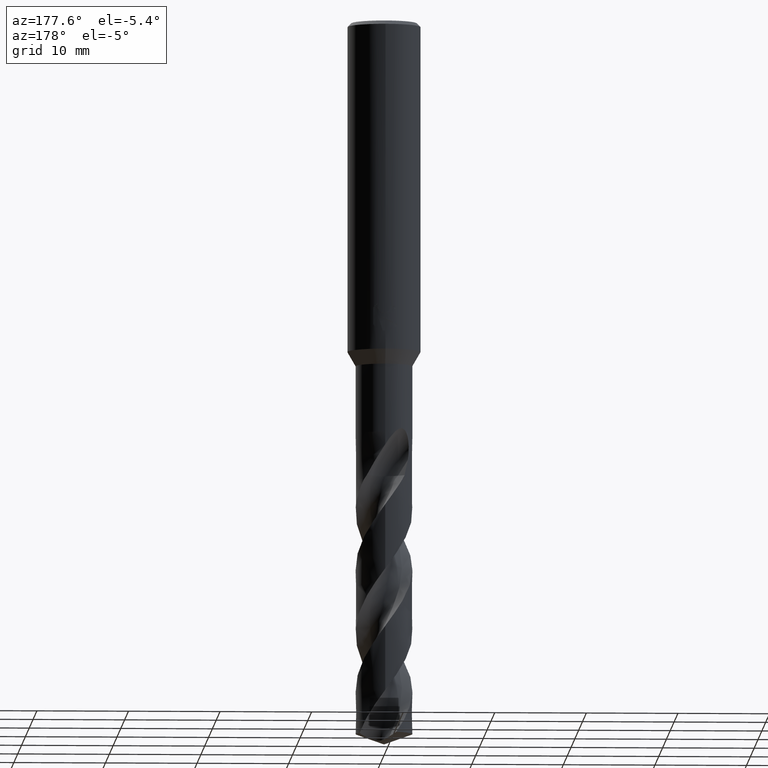
[diagram: clean part render]
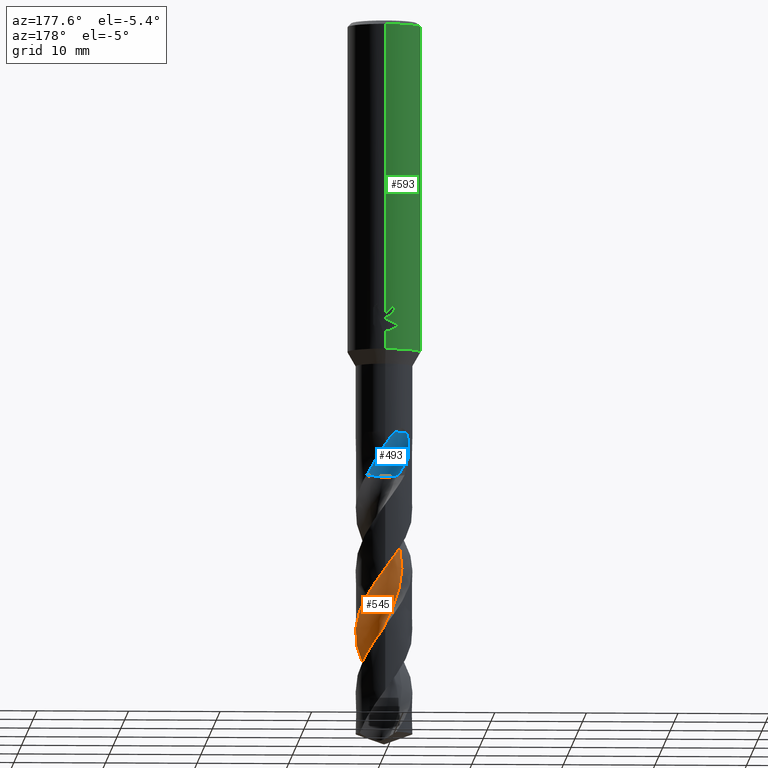
[diagram: same view with three faces highlighted in distinct colors, each labeled with its STEP entity id]
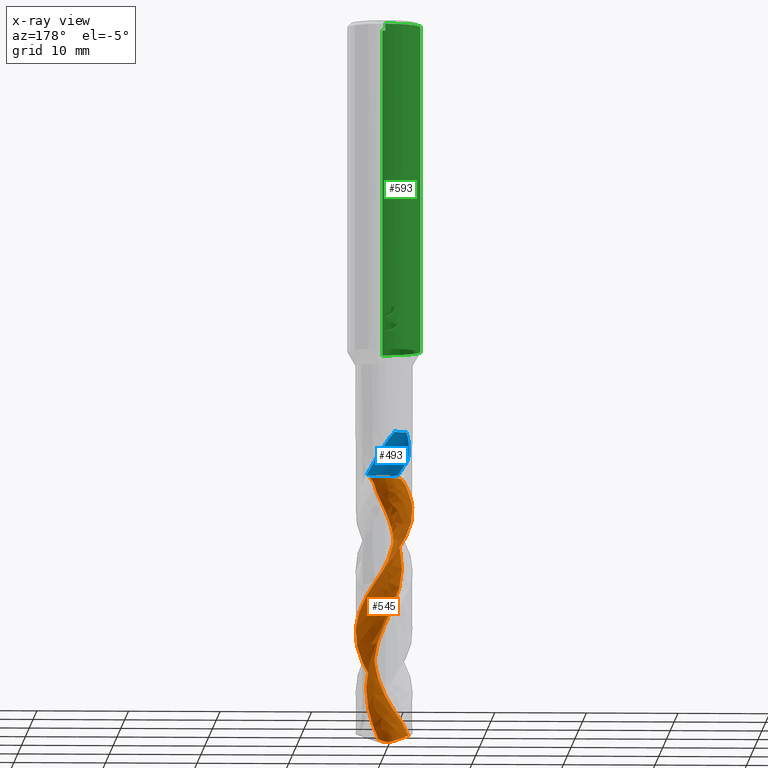
[diagram: x-ray of the same camera — body ghosted, the three highlighted faces saturated]
A machine part, auxiliary view with three faces highlighted in distinct colors.
The next image is the same camera in x-ray (body ghosted, the three faces saturated) — at least one of them is partly hidden behind the body in this view.
Their STEP definitions:

[orange] entity #545 — the highlighted face is a freeform B-spline surface patch.
#287=EDGE_CURVE('',#349,#737,#780,.T.);
#335=VERTEX_POINT('',#832);
#345=EDGE_CURVE('',#697,#511,#843,.T.);
#349=VERTEX_POINT('',#847);
#357=EDGE_CURVE('',#737,#697,#855,.T.);
#367=VERTEX_POINT('',#866);
#401=EDGE_CURVE('',#575,#349,#901,.T.);
#419=EDGE_CURVE('',#335,#735,#922,.T.);
#481=EDGE_CURVE('',#511,#367,#991,.T.);
#511=VERTEX_POINT('',#1023);
#533=EDGE_CURVE('',#367,#335,#1048,.T.);
#545=ADVANCED_FACE('',(#1060),#1061,.F.);
#575=VERTEX_POINT('',#1096);
#641=EDGE_CURVE('',#735,#575,#1170,.T.);
#697=VERTEX_POINT('',#1230);
#735=VERTEX_POINT('',#1270);
#737=VERTEX_POINT('',#1272);
#780=B_SPLINE_CURVE_WITH_KNOTS('',3,(#1444,#1445,#1446,#1447,#1448,#1449,#1450,#1451,#1452,#1453,#1454,#1455,#1456,#1457,#1458,#1459,#1460,#1461,#1462,#1463,#1464,#1465,#1466,#1467,#1468,#1469,#1470,#1471,#1472,#1473,#1474,#1475,#1476,#1477,#1478,#1479,#1480,#1481,#1482,#1483,#1484,#1485,#1486,#1487,#1488,#1489,#1490,#1491,#1492,#1493,#1494,#1495,#1496,#1497,#1498,#1499),.UNSPECIFIED.,.F.,.F.,(4,1,2,1,2,2,2,2,2,1,2,1,2,1,2,1,2,1,2,1,2,1,2,1,2,1,2,1,2,1,2,1,2,2,4),(0.0,0.654705551796728,1.30941110359346,1.96411665539018,2.61882220718691,3.92823331078037,5.23764441437382,6.54705551796728,7.85646662156073,9.16587772515419,10.4752888287476,11.7846999323411,13.0941110359346,14.403522139528,15.7129332431215,17.0223443467149,18.3317554503084,19.6411665539018,20.9505776574953,22.2599887610887,23.5693998646822,24.8788109682757,26.1882220718691,27.4976331754626,28.807044279056,30.1164553826495,31.4258664862429,32.7352775898364,34.0446886934298,35.3540997970233,36.6635109006168,37.9729220042102,39.2823331078037,40.5917442113971,41.9011553149906),.UNSPECIFIED.);
#832=CARTESIAN_POINT('',(3.59300457569718E-013,3.09994558055134,-59.9830985722831));
#843=B_SPLINE_CURVE_WITH_KNOTS('',3,(#1613,#1614,#1615,#1616,#1617,#1618,#1619,#1620,#1621,#1622,#1623,#1624,#1625,#1626,#1627,#1628,#1629,#1630,#1631,#1632),.UNSPECIFIED.,.F.,.F.,(4,2,2,2,2,2,2,2,2,4),(0.0,1.2776797389247,2.1571911088806,2.97014474915875,3.8460014866297,4.81135822773658,5.92797958653659,7.20045316818136,8.15986840857832,9.12177313206713),.UNSPECIFIED.);
#847=CARTESIAN_POINT('',(1.46135401673851,-1.53531265326149,-49.6922));
#855=B_SPLINE_CURVE_WITH_KNOTS('',3,(#1650,#1651,#1652,#1653,#1654,#1655,#1656,#1657,#1658,#1659,#1660,#1661,#1662,#1663,#1664,#1665,#1666,#1667,#1668,#1669),.UNSPECIFIED.,.F.,.F.,(4,2,2,2,2,2,2,2,2,4),(0.0,1.2776797389247,2.1571911088806,2.97014474915875,3.8460014866297,4.81135822773658,5.92797958653659,7.20045316818136,8.15986840857832,9.12177313206713),.UNSPECIFIED.);
#866=CARTESIAN_POINT('',(1.45184993000156E-013,-3.09998612539507,-73.3108748370046));
#901=CIRCLE('',#2570,2.06666667);
#922=B_SPLINE_CURVE_WITH_KNOTS('',3,(#2703,#2704,#2705,#2706,#2707,#2708,#2709,#2710,#2711,#2712,#2713,#2714,#2715,#2716,#2717,#2718,#2719,#2720,#2721,#2722,#2723,#2724,#2725,#2726,#2727,#2728,#2729,#2730,#2731,#2732,#2733,#2734,#2735,#2736,#2737,#2738,#2739,#2740,#2741,#2742,#2743,#2744,#2745,#2746,#2747,#2748,#2749,#2750,#2751,#2752,#2753,#2754,#2755,#2756,#2757,#2758,#2759,#2760,#2761,#2762,#2763,#2764,#2765,#2766,#2767,#2768,#2769,#2770,#2771,#2772,#2773,#2774,#2775,#2776,#2777,#2778,#2779,#2780,#2781,#2782,#2783,#2784),.UNSPECIFIED.,.F.,.F.,(4,2,2,2,2,2,2,2,2,2,2,2,2,2,2,2,2,2,2,2,2,2,2,2,2,2,2,2,2,2,2,2,2,2,2,2,2,2,2,2,4),(0.0,0.856061599828622,0.909993545275525,2.47001117801632,4.11663149555006,4.97788667861403,5.77339937239594,6.82589621890352,7.35276408944696,8.10413594333848,9.45348225411435,10.1638512290965,11.826560355959,12.62863139729,14.1920922370611,14.963849561981,16.5467631671824,16.9880790544425,18.6136075786344,19.3283413888064,21.0507988695984,21.8081547147079,23.196897945867,23.9867266121363,25.7228031876387,26.4939513485833,27.4284210849276,28.858554970066,29.2275521603569,29.5724951064688,30.8626793025605,32.7375491687495,32.9987990634023,33.4015367632623,33.8830651022223,34.0650285010144,34.1431930004415,34.2327389639865,34.3898748303979,34.5913180951472,34.8061493500424),.UNSPECIFIED.);
#991=B_SPLINE_CURVE_WITH_KNOTS('',3,(#3231,#3232,#3233,#3234,#3235,#3236,#3237,#3238,#3239,#3240,#3241,#3242,#3243,#3244,#3245,#3246,#3247,#3248,#3249,#3250,#3251,#3252,#3253,#3254,#3255,#3256,#3257,#3258,#3259,#3260,#3261,#3262,#3263,#3264,#3265,#3266,#3267,#3268,#3269,#3270,#3271,#3272,#3273,#3274,#3275,#3276,#3277,#3278,#3279,#3280,#3281,#3282,#3283,#3284,#3285,#3286,#3287,#3288,#3289,#3290,#3291,#3292,#3293,#3294,#3295,#3296,#3297,#3298,#3299,#3300,#3301,#3302,#3303,#3304,#3305,#3306,#3307,#3308,#3309,#3310,#3311,#3312),.UNSPECIFIED.,.F.,.F.,(4,2,2,2,2,2,2,2,2,2,2,2,2,2,2,2,2,2,2,2,2,2,2,2,2,2,2,2,2,2,2,2,2,2,2,2,2,2,2,2,4),(0.0,0.856061599828622,0.909993545275525,2.47001117801632,4.11663149555006,4.97788667861403,5.77339937239594,6.82589621890352,7.35276408944696,8.10413594333848,9.45348225411435,10.1638512290965,11.826560355959,12.62863139729,14.1920922370611,14.963849561981,16.5467631671824,16.9880790544425,18.6136075786344,19.3283413888064,21.0507988695984,21.8081547147079,23.196897945867,23.9867266121363,25.7228031876387,26.4939513485833,27.4284210849276,28.858554970066,29.2275521603569,29.5724951064688,30.8626793025605,32.7375491687495,32.9987990634023,33.4015367632623,33.8830651022223,34.0650285010144,34.1431930004415,34.2327389639865,34.3898748303979,34.5913180951472,34.8061493500424),.UNSPECIFIED.);
#1023=CARTESIAN_POINT('',(-2.72634811048658,-1.47547483219682,-77.8716922737748));
#1048=B_SPLINE_CURVE_WITH_KNOTS('',3,(#3474,#3475,#3476,#3477,#3478,#3479,#3480,#3481,#3482,#3483,#3484,#3485,#3486,#3487,#3488,#3489,#3490,#3491,#3492,#3493,#3494,#3495,#3496,#3497,#3498,#3499,#3500,#3501,#3502,#3503,#3504,#3505,#3506,#3507,#3508,#3509,#3510,#3511,#3512,#3513,#3514,#3515,#3516,#3517,#3518,#3519,#3520,#3521,#3522,#3523,#3524,#3525,#3526,#3527,#3528,#3529,#3530,#3531,#3532,#3533,#3534,#3535,#3536,#3537,#3538,#3539,#3540,#3541,#3542,#3543,#3544,#3545,#3546,#3547,#3548,#3549,#3550,#3551,#3552,#3553,#3554,#3555),.UNSPECIFIED.,.F.,.F.,(4,2,2,2,2,2,2,2,2,2,2,2,2,2,2,2,2,2,2,2,2,2,2,2,2,2,2,2,2,2,2,2,2,2,2,2,2,2,2,2,4),(0.0,0.856061599828622,0.909993545275525,2.47001117801632,4.11663149555006,4.97788667861403,5.77339937239594,6.82589621890352,7.35276408944696,8.10413594333848,9.45348225411435,10.1638512290965,11.826560355959,12.62863139729,14.1920922370611,14.963849561981,16.5467631671824,16.9880790544425,18.6136075786344,19.3283413888064,21.0507988695984,21.8081547147079,23.196897945867,23.9867266121363,25.7228031876387,26.4939513485833,27.4284210849276,28.858554970066,29.2275521603569,29.5724951064688,30.8626793025605,32.7375491687495,32.9987990634023,33.4015367632623,33.8830651022223,34.0650285010144,34.1431930004415,34.2327389639865,34.3898748303979,34.5913180951472,34.8061493500424),.UNSPECIFIED.);
#1060=FACE_OUTER_BOUND('',#3598,.T.);
#1061=B_SPLINE_SURFACE_WITH_KNOTS('',3,3,((#3599,#3600,#3601,#3602,#3603,#3604,#3605,#3606,#3607,#3608,#3609,#3610,#3611,#3612,#3613,#3614,#3615,#3616,#3617,#3618,#3619,#3620,#3621,#3622,#3623,#3624,#3625,#3626,#3627,#3628,#3629,#3630,#3631,#3632,#3633,#3634,#3635,#3636,#3637,#3638,#3639,#3640,#3641,#3642,#3643,#3644,#3645,#3646,#3647,#3648,#3649,#3650,#3651,#3652,#3653,#3654),(#3655,#3656,#3657,#3658,#3659,#3660,#3661,#3662,#3663,#3664,#3665,#3666,#3667,#3668,#3669,#3670,#3671,#3672,#3673,#3674,#3675,#3676,#3677,#3678,#3679,#3680,#3681,#3682,#3683,#3684,#3685,#3686,#3687,#3688,#3689,#3690,#3691,#3692,#3693,#3694,#3695,#3696,#3697,#3698,#3699,#3700,#3701,#3702,#3703,#3704,#3705,#3706,#3707,#3708,#3709,#3710),(#3711,#3712,#3713,#3714,#3715,#3716,#3717,#3718,#3719,#3720,#3721,#3722,#3723,#3724,#3725,#3726,#3727,#3728,#3729,#3730,#3731,#3732,#3733,#3734,#3735,#3736,#3737,#3738,#3739,#3740,#3741,#3742,#3743,#3744,#3745,#3746,#3747,#3748,#3749,#3750,#3751,#3752,#3753,#3754,#3755,#3756,#3757,#3758,#3759,#3760,#3761,#3762,#3763,#3764,#3765,#3766),(#3767,#3768,#3769,#3770,#3771,#3772,#3773,#3774,#3775,#3776,#3777,#3778,#3779,#3780,#3781,#3782,#3783,#3784,#3785,#3786,#3787,#3788,#3789,#3790,#3791,#3792,#3793,#3794,#3795,#3796,#3797,#3798,#3799,#3800,#3801,#3802,#3803,#3804,#3805,#3806,#3807,#3808,#3809,#3810,#3811,#3812,#3813,#3814,#3815,#3816,#3817,#3818,#3819,#3820,#3821,#3822),(#3823,#3824,#3825,#3826,#3827,#3828,#3829,#3830,#3831,#3832,#3833,#3834,#3835,#3836,#3837,#3838,#3839,#3840,#3841,#3842,#3843,#3844,#3845,#3846,#3847,#3848,#3849,#3850,#3851,#3852,#3853,#3854,#3855,#3856,#3857,#3858,#3859,#3860,#3861,#3862,#3863,#3864,#3865,#3866,#3867,#3868,#3869,#3870,#3871,#3872,#3873,#3874,#3875,#3876,#3877,#3878),(#3879,#3880,#3881,#3882,#3883,#3884,#3885,#3886,#3887,#3888,#3889,#3890,#3891,#3892,#3893,#3894,#3895,#3896,#3897,#3898,#3899,#3900,#3901,#3902,#3903,#3904,#3905,#3906,#3907,#3908,#3909,#3910,#3911,#3912,#3913,#3914,#3915,#3916,#3917,#3918,#3919,#3920,#3921,#3922,#3923,#3924,#3925,#3926,#3927,#3928,#3929,#3930,#3931,#3932,#3933,#3934),(#3935,#3936,#3937,#3938,#3939,#3940,#3941,#3942,#3943,#3944,#3945,#3946,#3947,#3948,#3949,#3950,#3951,#3952,#3953,#3954,#3955,#3956,#3957,#3958,#3959,#3960,#3961,#3962,#3963,#3964,#3965,#3966,#3967,#3968,#3969,#3970,#3971,#3972,#3973,#3974,#3975,#3976,#3977,#3978,#3979,#3980,#3981,#3982,#3983,#3984,#3985,#3986,#3987,#3988,#3989,#3990),(#3991,#3992,#3993,#3994,#3995,#3996,#3997,#3998,#3999,#4000,#4001,#4002,#4003,#4004,#4005,#4006,#4007,#4008,#4009,#4010,#4011,#4012,#4013,#4014,#4015,#4016,#4017,#4018,#4019,#4020,#4021,#4022,#4023,#4024,#4025,#4026,#4027,#4028,#4029,#4030,#4031,#4032,#4033,#4034,#4035,#4036,#4037,#4038,#4039,#4040,#4041,#4042,#4043,#4044,#4045,#4046),(#4047,#4048,#4049,#4050,#4051,#4052,#4053,#4054,#4055,#4056,#4057,#4058,#4059,#4060,#4061,#4062,#4063,#4064,#4065,#4066,#4067,#4068,#4069,#4070,#4071,#4072,#4073,#4074,#4075,#4076,#4077,#4078,#4079,#4080,#4081,#4082,#4083,#4084,#4085,#4086,#4087,#4088,#4089,#4090,#4091,#4092,#4093,#4094,#4095,#4096,#4097,#4098,#4099,#4100,#4101,#4102),(#4103,#4104,#4105,#4106,#4107,#4108,#4109,#4110,#4111,#4112,#4113,#4114,#4115,#4116,#4117,#4118,#4119,#4120,#4121,#4122,#4123,#4124,#4125,#4126,#4127,#4128,#4129,#4130,#4131,#4132,#4133,#4134,#4135,#4136,#4137,#4138,#4139,#4140,#4141,#4142,#4143,#4144,#4145,#4146,#4147,#4148,#4149,#4150,#4151,#4152,#4153,#4154,#4155,#4156,#4157,#4158),(#4159,#4160,#4161,#4162,#4163,#4164,#4165,#4166,#4167,#4168,#4169,#4170,#4171,#4172,#4173,#4174,#4175,#4176,#4177,#4178,#4179,#4180,#4181,#4182,#4183,#4184,#4185,#4186,#4187,#4188,#4189,#4190,#4191,#4192,#4193,#4194,#4195,#4196,#4197,#4198,#4199,#4200,#4201,#4202,#4203,#4204,#4205,#4206,#4207,#4208,#4209,#4210,#4211,#4212,#4213,#4214)),.UNSPECIFIED.,.F.,.F.,.F.,(4,1,1,1,1,1,1,1,4),(4,1,2,1,2,2,2,2,2,1,2,1,2,1,2,1,2,1,2,1,2,1,2,1,2,1,2,1,2,1,2,1,2,2,4),(-7.87936310948255E-017,0.392701541045706,0.785403082091412,1.17810462313712,1.57080616418282,1.96350770522853,2.35620924627424,2.74891078731994,3.14161232836565),(0.0,0.654705551796728,1.30941110359346,1.96411665539018,2.61882220718691,3.92823331078037,5.23764441437382,6.54705551796728,7.85646662156073,9.16587772515419,10.4752888287476,11.7846999323411,13.0941110359346,14.403522139528,15.7129332431215,17.0223443467149,18.3317554503084,19.6411665539018,20.9505776574953,22.2599887610887,23.5693998646822,24.8788109682757,26.1882220718691,27.4976331754626,28.807044279056,30.1164553826495,31.4258664862429,32.7352775898364,34.0446886934298,35.3540997970233,36.6635109006168,37.9729220042102,39.2823331078037,40.5917442113971,41.9011553149906),.UNSPECIFIED.);
#1096=CARTESIAN_POINT('',(0.253360325551106,-0.945576384832785,-49.6922));
#1170=CIRCLE('',#4670,2.06666667);
#1230=CARTESIAN_POINT('',(2.57712355601377E-012,-1.20644897234124,-78.5608884849067));
#1270=CARTESIAN_POINT('',(-1.97534083153026,-2.38903685765276,-49.6922));
#1272=CARTESIAN_POINT('',(0.523874170516875,-1.88324297711443,-78.2885291198749));
#1444=CARTESIAN_POINT('',(1.46135401673851,-1.53531265326149,-49.6922));
#1445=CARTESIAN_POINT('',(1.31128334442522,-1.52949962210154,-49.84469960063));
#1446=CARTESIAN_POINT('',(1.07196873429527,-1.54752398830833,-50.1482003673289));
#1447=CARTESIAN_POINT('',(0.953857184138042,-1.62067133154347,-50.4514618168116));
#1448=CARTESIAN_POINT('',(0.885347171903104,-1.72911879569324,-50.7588695508742));
#1449=CARTESIAN_POINT('',(0.789461526070308,-1.81852515171217,-51.0668703915565));
#1450=CARTESIAN_POINT('',(0.653816530632313,-1.86463647628473,-51.3727717713243));
#1451=CARTESIAN_POINT('',(0.432432219346994,-1.90323651078265,-51.8282631592159));
#1452=CARTESIAN_POINT('',(0.291646466037682,-1.92442091605639,-52.1324072144411));
#1453=CARTESIAN_POINT('',(0.01880659781155,-1.96019014194198,-52.7448345987212));
#1454=CARTESIAN_POINT('',(-0.123354147207458,-1.95560726410389,-53.0506638914143));
#1455=CARTESIAN_POINT('',(-0.40239330963424,-1.91602002731151,-53.6606018913891));
#1456=CARTESIAN_POINT('',(-0.539793004800182,-1.87998904803996,-53.9657981401722));
#1457=CARTESIAN_POINT('',(-0.803558680917622,-1.78509668447071,-54.5768233824766));
#1458=CARTESIAN_POINT('',(-0.93017417472621,-1.72131264723029,-54.8821660502853));
#1459=CARTESIAN_POINT('',(-1.16793099382091,-1.57538486456325,-55.4927590708155));
#1460=CARTESIAN_POINT('',(-1.38761053656605,-1.39355342148918,-56.1036749220314));
#1461=CARTESIAN_POINT('',(-1.56344794321507,-1.17116871225531,-56.7139736258605));
#1462=CARTESIAN_POINT('',(-1.71978035935202,-0.941411472828543,-57.3247464812917));
#1463=CARTESIAN_POINT('',(-1.84422523589288,-0.68542631854272,-57.9358687621184));
#1464=CARTESIAN_POINT('',(-1.91067904107902,-0.409605653406504,-58.5462195646323));
#1465=CARTESIAN_POINT('',(-1.95600720074503,-0.135176278815101,-59.1568927213225));
#1466=CARTESIAN_POINT('',(-1.96164463650305,0.149483380581203,-59.7679315042209));
#1467=CARTESIAN_POINT('',(-1.90664006677963,0.427744498951407,-60.3782714934064));
#1468=CARTESIAN_POINT('',(-1.8330205504175,0.695928652909798,-60.9889792021156));
#1469=CARTESIAN_POINT('',(-1.71900032237177,0.95681527534683,-61.6000431701432));
#1470=CARTESIAN_POINT('',(-1.55253918880222,1.1865046536979,-62.2103846925953));
#1471=CARTESIAN_POINT('',(-1.37341849286157,1.39925306715561,-62.8210827733388));
#1472=CARTESIAN_POINT('',(-1.16067627755529,1.58846570901206,-63.4321403907741));
#1473=CARTESIAN_POINT('',(-0.913365974875838,1.72739686742192,-64.0424822275885));
#1474=CARTESIAN_POINT('',(-0.661639457916455,1.84563638004105,-64.6531831558605));
#1475=CARTESIAN_POINT('',(-0.389229371531447,1.92842873265862,-65.2642423175091));
#1476=CARTESIAN_POINT('',(-0.106475349823951,1.95109389208985,-65.8745842078351));
#1477=CARTESIAN_POINT('',(0.1716272108284,1.95312395112116,-66.4852851990792));
#1478=CARTESIAN_POINT('',(0.453679368027033,1.91430162661767,-67.0963443550741));
#1479=CARTESIAN_POINT('',(0.719959642696718,1.81654112830486,-67.7066855720277));
#1480=CARTESIAN_POINT('',(0.973378600832433,1.70198827336944,-68.3173854725726));
#1481=CARTESIAN_POINT('',(1.21328565026725,1.54868092766115,-68.9284443607429));
#1482=CARTESIAN_POINT('',(1.41419920340548,1.34844136304738,-69.5387869896107));
#1483=CARTESIAN_POINT('',(1.59640119602543,1.13832890784005,-70.1494889788248));
#1484=CARTESIAN_POINT('',(1.75010363364291,0.898663106433265,-70.7605481899802));
#1485=CARTESIAN_POINT('',(1.84874324653732,0.632700040518428,-71.3708837943514));
#1486=CARTESIAN_POINT('',(1.92626734772056,0.365616708525206,-71.9815739914602));
#1487=CARTESIAN_POINT('',(1.96557179596899,0.0836489314463103,-72.5926321365845));
#1488=CARTESIAN_POINT('',(1.94382592480353,-0.199194142272599,-73.2029967580174));
#1489=CARTESIAN_POINT('',(1.90234960729989,-0.474245801732131,-73.8137311300094));
#1490=CARTESIAN_POINT('',(1.81990763841555,-0.746816216004286,-74.4247871797311));
#1491=CARTESIAN_POINT('',(1.68206259975009,-0.994571165815046,-75.0350570101948));
#1492=CARTESIAN_POINT('',(1.52992251651211,-1.22706906086797,-75.6456645822738));
#1493=CARTESIAN_POINT('',(1.34121363253336,-1.440144394515,-76.256744035308));
#1494=CARTESIAN_POINT('',(1.11070368100516,-1.60673876746846,-76.8672435824371));
#1495=CARTESIAN_POINT('',(0.872671623274415,-1.75264020585923,-77.4780978481622));
#1496=CARTESIAN_POINT('',(0.743296151762174,-1.81050621065377,-77.7834881904799));
#1497=CARTESIAN_POINT('',(0.479675653264412,-1.90171314738274,-78.3936996317428));
#1498=CARTESIAN_POINT('',(0.338672128649824,-1.9277529521134,-78.6989244465537));
#1499=CARTESIAN_POINT('',(0.195621526934575,-1.93645951621725,-79.0039581133995));
#1613=CARTESIAN_POINT('',(0.523874170516733,-1.88324297711442,-78.2885291198751));
#1614=CARTESIAN_POINT('',(0.315754281108209,-1.53940200714764,-78.4293998274613));
#1615=CARTESIAN_POINT('',(0.060235290087485,-1.24851973165381,-78.555698236238));
#1616=CARTESIAN_POINT('',(-0.339473570520821,-0.89134139881998,-78.6594450154904));
#1617=CARTESIAN_POINT('',(-0.491791091567541,-0.782649986546712,-78.6693144324497));
#1618=CARTESIAN_POINT('',(-0.792339092568467,-0.62556808999016,-78.6370474108172));
#1619=CARTESIAN_POINT('',(-0.9413691989872,-0.574269272439901,-78.6000190881026));
#1620=CARTESIAN_POINT('',(-1.26164766465912,-0.523292832772632,-78.5041499559935));
#1621=CARTESIAN_POINT('',(-1.43760550163543,-0.527212627938519,-78.4427288182751));
#1622=CARTESIAN_POINT('',(-1.8145274178733,-0.613703047731146,-78.3028641173498));
#1623=CARTESIAN_POINT('',(-2.00022781825426,-0.700547421355865,-78.2288514822768));
#1624=CARTESIAN_POINT('',(-2.35799031380534,-0.956377145399823,-78.0741181377673));
#1625=CARTESIAN_POINT('',(-2.52010834553027,-1.13353108232272,-77.9952551087627));
#1626=CARTESIAN_POINT('',(-2.79185490402908,-1.56821573208141,-77.8356505651684));
#1627=CARTESIAN_POINT('',(-2.88873717923894,-1.82959264029808,-77.7574539062735));
#1628=CARTESIAN_POINT('',(-2.97294281639675,-2.30887240652164,-77.6309765439117));
#1629=CARTESIAN_POINT('',(-2.98113532203808,-2.52024094316227,-77.5804797851009));
#1630=CARTESIAN_POINT('',(-2.94352965741738,-2.9413470024388,-77.4866653710001));
#1631=CARTESIAN_POINT('',(-2.89768011765113,-3.15017430313587,-77.443573502992));
#1632=CARTESIAN_POINT('',(-2.82652578030975,-3.35123141744112,-77.4043319110419));
#1650=CARTESIAN_POINT('',(0.523874170516733,-1.88324297711442,-78.2885291198751));
#1651=CARTESIAN_POINT('',(0.315754281108209,-1.53940200714764,-78.4293998274613));
#1652=CARTESIAN_POINT('',(0.060235290087485,-1.24851973165381,-78.555698236238));
#1653=CARTESIAN_POINT('',(-0.339473570520821,-0.89134139881998,-78.6594450154904));
#1654=CARTESIAN_POINT('',(-0.491791091567541,-0.782649986546712,-78.6693144324497));
#1655=CARTESIAN_POINT('',(-0.792339092568467,-0.62556808999016,-78.6370474108172));
#1656=CARTESIAN_POINT('',(-0.9413691989872,-0.574269272439901,-78.6000190881026));
#1657=CARTESIAN_POINT('',(-1.26164766465912,-0.523292832772632,-78.5041499559935));
#1658=CARTESIAN_POINT('',(-1.43760550163543,-0.527212627938519,-78.4427288182751));
#1659=CARTESIAN_POINT('',(-1.8145274178733,-0.613703047731146,-78.3028641173498));
#1660=CARTESIAN_POINT('',(-2.00022781825426,-0.700547421355865,-78.2288514822768));
#1661=CARTESIAN_POINT('',(-2.35799031380534,-0.956377145399823,-78.0741181377673));
#1662=CARTESIAN_POINT('',(-2.52010834553027,-1.13353108232272,-77.9952551087627));
#1663=CARTESIAN_POINT('',(-2.79185490402908,-1.56821573208141,-77.8356505651684));
#1664=CARTESIAN_POINT('',(-2.88873717923894,-1.82959264029808,-77.7574539062735));
#1665=CARTESIAN_POINT('',(-2.97294281639675,-2.30887240652164,-77.6309765439117));
#1666=CARTESIAN_POINT('',(-2.98113532203808,-2.52024094316227,-77.5804797851009));
#1667=CARTESIAN_POINT('',(-2.94352965741738,-2.9413470024388,-77.4866653710001));
#1668=CARTESIAN_POINT('',(-2.89768011765113,-3.15017430313587,-77.443573502992));
#1669=CARTESIAN_POINT('',(-2.82652578030975,-3.35123141744112,-77.4043319110419));
#2570=AXIS2_PLACEMENT_3D('',#5482,#5483,#5484);
#2703=CARTESIAN_POINT('',(-2.72634811048657,-1.47547483219683,-77.8716922737748));
#2704=CARTESIAN_POINT('',(-2.64635538440092,-1.6232820587684,-77.6410821769975));
#2705=CARTESIAN_POINT('',(-2.55452195492674,-1.76425062763587,-77.4116573986516));
#2706=CARTESIAN_POINT('',(-2.44534140230759,-1.90536189100122,-77.1663861455528));
#2707=CARTESIAN_POINT('',(-2.4388229803582,-1.91369837386474,-77.1518393935002));
#2708=CARTESIAN_POINT('',(-2.24196150736785,-2.16281670433034,-76.7155912062384));
#2709=CARTESIAN_POINT('',(-2.01673310933797,-2.37436600011872,-76.3008129523091));
#2710=CARTESIAN_POINT('',(-1.49606743784779,-2.73448646712555,-75.4367216834538));
#2711=CARTESIAN_POINT('',(-1.20152556748738,-2.87610708608681,-74.9900905079868));
#2712=CARTESIAN_POINT('',(-0.727187310853633,-3.01828612971496,-74.3144634182087));
#2713=CARTESIAN_POINT('',(-0.560698890087298,-3.05358036846942,-74.0835779158124));
#2714=CARTESIAN_POINT('',(-0.23682310004508,-3.09490106078681,-73.6368229663575));
#2715=CARTESIAN_POINT('',(-0.0803695289595083,-3.10288993925046,-73.4210447885167));
#2716=CARTESIAN_POINT('',(0.282906027460936,-3.09397845578656,-72.9227831784695));
#2717=CARTESIAN_POINT('',(0.489076614116897,-3.06819438133832,-72.6412856971336));
#2718=CARTESIAN_POINT('',(0.79279758748092,-2.99869447333417,-72.2163704122085));
#2719=CARTESIAN_POINT('',(0.892724862914313,-2.97046578796057,-72.0747947292145));
#2720=CARTESIAN_POINT('',(1.13089504515972,-2.89011960132843,-71.730301535845));
#2721=CARTESIAN_POINT('',(1.26713798988906,-2.8330350924976,-71.5266924366157));
#2722=CARTESIAN_POINT('',(1.63589891078072,-2.64653727717517,-70.9604136551687));
#2723=CARTESIAN_POINT('',(1.85646426046794,-2.49679643638623,-70.6013373005943));
#2724=CARTESIAN_POINT('',(2.16006324438638,-2.22790108610407,-70.0467689627229));
#2725=CARTESIAN_POINT('',(2.25812765756992,-2.12839238810443,-69.8545155048126));
#2726=CARTESIAN_POINT('',(2.56134803218943,-1.77632209026346,-69.2160840690739));
#2727=CARTESIAN_POINT('',(2.73371916233099,-1.49763877991786,-68.7772369528156));
#2728=CARTESIAN_POINT('',(2.92033095944891,-1.05177095153645,-68.1155297254919));
#2729=CARTESIAN_POINT('',(2.9698230840822,-0.902571015297004,-67.8989173668533));
#2730=CARTESIAN_POINT('',(3.08192389971728,-0.453089172724536,-67.2638826689137));
#2731=CARTESIAN_POINT('',(3.11157316044,-0.146826754874188,-66.8512007990642));
#2732=CARTESIAN_POINT('',(3.08815615828627,0.309663764788545,-66.2247024356697));
#2733=CARTESIAN_POINT('',(3.0694350495479,0.459564287598094,-66.0165158313588));
#2734=CARTESIAN_POINT('',(2.97899663139075,0.911859594708162,-65.3846177992514));
#2735=CARTESIAN_POINT('',(2.87300240662324,1.20476388144366,-64.9670800149988));
#2736=CARTESIAN_POINT('',(2.68437946823484,1.55283707398325,-64.4238498868267));
#2737=CARTESIAN_POINT('',(2.64020959218369,1.62679174664505,-64.3050306569709));
#2738=CARTESIAN_POINT('',(2.4192176697869,1.96410441816405,-63.7507656335691));
#2739=CARTESIAN_POINT('',(2.20561904889765,2.20136858535621,-63.32270213575));
#2740=CARTESIAN_POINT('',(1.85095595150199,2.49062492580703,-62.6966776633128));
#2741=CARTESIAN_POINT('',(1.73704836374,2.57132729098166,-62.5044665640221));
#2742=CARTESIAN_POINT('',(1.33247683019162,2.81896943214959,-61.8529384448632));
#2743=CARTESIAN_POINT('',(1.02008956944251,2.94646065857445,-61.4017092048971));
#2744=CARTESIAN_POINT('',(0.54937683016514,3.05444207380853,-60.7398698431226));
#2745=CARTESIAN_POINT('',(0.403674132877062,3.07709006555978,-60.5366302740777));
#2746=CARTESIAN_POINT('',(-0.0129227537643519,3.11169894954077,-59.9637440336629));
#2747=CARTESIAN_POINT('',(-0.284322925434375,3.09872670263532,-59.5979259148791));
#2748=CARTESIAN_POINT('',(-0.702260670168666,3.02327326389988,-59.0170238660377));
#2749=CARTESIAN_POINT('',(-0.851178286859917,2.98474062812558,-58.8051919335407));
#2750=CARTESIAN_POINT('',(-1.31581139472874,2.82701297567111,-58.1318806868582));
#2751=CARTESIAN_POINT('',(-1.61508175250636,2.66733107545863,-57.678546574898));
#2752=CARTESIAN_POINT('',(-2.00164980484342,2.37179333806262,-57.0106822781491));
#2753=CARTESIAN_POINT('',(-2.11398981973316,2.27226592130408,-56.8038571738229));
#2754=CARTESIAN_POINT('',(-2.34589484105545,2.03456973496187,-56.3490808596131));
#2755=CARTESIAN_POINT('',(-2.4614103585093,1.89323629711318,-56.1014788864566));
#2756=CARTESIAN_POINT('',(-2.72092133289152,1.51133998070718,-55.4721441041847));
#2757=CARTESIAN_POINT('',(-2.84568805218801,1.2606159452697,-55.0902686308879));
#2758=CARTESIAN_POINT('',(-2.95833763401409,0.92895671367555,-54.6107841193555));
#2759=CARTESIAN_POINT('',(-2.97907067469868,0.860150385024829,-54.5125372941084));
#2760=CARTESIAN_POINT('',(-3.01452462981195,0.725746135556582,-54.3222733890862));
#2761=CARTESIAN_POINT('',(-3.0295366570361,0.660281529042074,-54.2302761087022));
#2762=CARTESIAN_POINT('',(-3.09057283324241,0.347848280864119,-53.7945243341825));
#2763=CARTESIAN_POINT('',(-3.10862291586506,0.0961930452158464,-53.4522379601807));
#2764=CARTESIAN_POINT('',(-3.07777375364783,-0.519999551629474,-52.6091907651317));
#2765=CARTESIAN_POINT('',(-2.99493559399337,-0.882628135485706,-52.0962622800658));
#2766=CARTESIAN_POINT('',(-2.82693910474308,-1.27303591079463,-51.5305687826182));
#2767=CARTESIAN_POINT('',(-2.80522261151156,-1.32023429390697,-51.4620053482913));
#2768=CARTESIAN_POINT('',(-2.7459876292501,-1.44072281146007,-51.2821126374255));
#2769=CARTESIAN_POINT('',(-2.70772132286546,-1.51128089016874,-51.1728416981194));
#2770=CARTESIAN_POINT('',(-2.6194475545699,-1.66038849450446,-50.9294275514962));
#2771=CARTESIAN_POINT('',(-2.5691621957831,-1.73687326118517,-50.796096252347));
#2772=CARTESIAN_POINT('',(-2.49800291849997,-1.83591553493237,-50.6078385488602));
#2773=CARTESIAN_POINT('',(-2.478652266079,-1.86228821286828,-50.5557424685568));
#2774=CARTESIAN_POINT('',(-2.43616650203103,-1.91703135716878,-50.4544867270376));
#2775=CARTESIAN_POINT('',(-2.42302932738163,-1.93361698255293,-50.4243273921942));
#2776=CARTESIAN_POINT('',(-2.39396821331792,-1.96951911063905,-50.3601130605556));
#2777=CARTESIAN_POINT('',(-2.37794481962915,-1.98884727404836,-50.3261917569578));
#2778=CARTESIAN_POINT('',(-2.33228219915218,-2.04253620279783,-50.233629467923));
#2779=CARTESIAN_POINT('',(-2.30160559622204,-2.07710356366978,-50.1758801714008));
#2780=CARTESIAN_POINT('',(-2.22753347184699,-2.15668733941675,-50.0463842786885));
#2781=CARTESIAN_POINT('',(-2.18322739135822,-2.20164613368566,-49.9756997241563));
#2782=CARTESIAN_POINT('',(-2.08555221120832,-2.29451106239094,-49.8330469945131));
#2783=CARTESIAN_POINT('',(-2.03207488129949,-2.34212739751627,-49.761742368007));
#2784=CARTESIAN_POINT('',(-1.97534083153026,-2.38903685765276,-49.6922));
#3231=CARTESIAN_POINT('',(-2.72634811048657,-1.47547483219683,-77.8716922737748));
#3232=CARTESIAN_POINT('',(-2.64635538440092,-1.6232820587684,-77.6410821769975));
#3233=CARTESIAN_POINT('',(-2.55452195492674,-1.76425062763587,-77.4116573986516));
#3234=CARTESIAN_POINT('',(-2.44534140230759,-1.90536189100122,-77.1663861455528));
#3235=CARTESIAN_POINT('',(-2.4388229803582,-1.91369837386474,-77.1518393935002));
#3236=CARTESIAN_POINT('',(-2.24196150736785,-2.16281670433034,-76.7155912062384));
#3237=CARTESIAN_POINT('',(-2.01673310933797,-2.37436600011872,-76.3008129523091));
#3238=CARTESIAN_POINT('',(-1.49606743784779,-2.73448646712555,-75.4367216834538));
#3239=CARTESIAN_POINT('',(-1.20152556748738,-2.87610708608681,-74.9900905079868));
#3240=CARTESIAN_POINT('',(-0.727187310853633,-3.01828612971496,-74.3144634182087));
#3241=CARTESIAN_POINT('',(-0.560698890087298,-3.05358036846942,-74.0835779158124));
#3242=CARTESIAN_POINT('',(-0.23682310004508,-3.09490106078681,-73.6368229663575));
#3243=CARTESIAN_POINT('',(-0.0803695289595083,-3.10288993925046,-73.4210447885167));
#3244=CARTESIAN_POINT('',(0.282906027460936,-3.09397845578656,-72.9227831784695));
#3245=CARTESIAN_POINT('',(0.489076614116897,-3.06819438133832,-72.6412856971336));
#3246=CARTESIAN_POINT('',(0.79279758748092,-2.99869447333417,-72.2163704122085));
#3247=CARTESIAN_POINT('',(0.892724862914313,-2.97046578796057,-72.0747947292145));
#3248=CARTESIAN_POINT('',(1.13089504515972,-2.89011960132843,-71.730301535845));
#3249=CARTESIAN_POINT('',(1.26713798988906,-2.8330350924976,-71.5266924366157));
#3250=CARTESIAN_POINT('',(1.63589891078072,-2.64653727717517,-70.9604136551687));
#3251=CARTESIAN_POINT('',(1.85646426046794,-2.49679643638623,-70.6013373005943));
#3252=CARTESIAN_POINT('',(2.16006324438638,-2.22790108610407,-70.0467689627229));
#3253=CARTESIAN_POINT('',(2.25812765756992,-2.12839238810443,-69.8545155048126));
#3254=CARTESIAN_POINT('',(2.56134803218943,-1.77632209026346,-69.2160840690739));
#3255=CARTESIAN_POINT('',(2.73371916233099,-1.49763877991786,-68.7772369528156));
#3256=CARTESIAN_POINT('',(2.92033095944891,-1.05177095153645,-68.1155297254919));
#3257=CARTESIAN_POINT('',(2.9698230840822,-0.902571015297004,-67.8989173668533));
#3258=CARTESIAN_POINT('',(3.08192389971728,-0.453089172724536,-67.2638826689137));
#3259=CARTESIAN_POINT('',(3.11157316044,-0.146826754874188,-66.8512007990642));
#3260=CARTESIAN_POINT('',(3.08815615828627,0.309663764788545,-66.2247024356697));
#3261=CARTESIAN_POINT('',(3.0694350495479,0.459564287598094,-66.0165158313588));
#3262=CARTESIAN_POINT('',(2.97899663139075,0.911859594708162,-65.3846177992514));
#3263=CARTESIAN_POINT('',(2.87300240662324,1.20476388144366,-64.9670800149988));
#3264=CARTESIAN_POINT('',(2.68437946823484,1.55283707398325,-64.4238498868267));
#3265=CARTESIAN_POINT('',(2.64020959218369,1.62679174664505,-64.3050306569709));
#3266=CARTESIAN_POINT('',(2.4192176697869,1.96410441816405,-63.7507656335691));
#3267=CARTESIAN_POINT('',(2.20561904889765,2.20136858535621,-63.32270213575));
#3268=CARTESIAN_POINT('',(1.85095595150199,2.49062492580703,-62.6966776633128));
#3269=CARTESIAN_POINT('',(1.73704836374,2.57132729098166,-62.5044665640221));
#3270=CARTESIAN_POINT('',(1.33247683019162,2.81896943214959,-61.8529384448632));
#3271=CARTESIAN_POINT('',(1.02008956944251,2.94646065857445,-61.4017092048971));
#3272=CARTESIAN_POINT('',(0.54937683016514,3.05444207380853,-60.7398698431226));
#3273=CARTESIAN_POINT('',(0.403674132877062,3.07709006555978,-60.5366302740777));
#3274=CARTESIAN_POINT('',(-0.0129227537643519,3.11169894954077,-59.9637440336629));
#3275=CARTESIAN_POINT('',(-0.284322925434375,3.09872670263532,-59.5979259148791));
#3276=CARTESIAN_POINT('',(-0.702260670168666,3.02327326389988,-59.0170238660377));
#3277=CARTESIAN_POINT('',(-0.851178286859917,2.98474062812558,-58.8051919335407));
#3278=CARTESIAN_POINT('',(-1.31581139472874,2.82701297567111,-58.1318806868582));
#3279=CARTESIAN_POINT('',(-1.61508175250636,2.66733107545863,-57.678546574898));
#3280=CARTESIAN_POINT('',(-2.00164980484342,2.37179333806262,-57.0106822781491));
#3281=CARTESIAN_POINT('',(-2.11398981973316,2.27226592130408,-56.8038571738229));
#3282=CARTESIAN_POINT('',(-2.34589484105545,2.03456973496187,-56.3490808596131));
#3283=CARTESIAN_POINT('',(-2.4614103585093,1.89323629711318,-56.1014788864566));
#3284=CARTESIAN_POINT('',(-2.72092133289152,1.51133998070718,-55.4721441041847));
#3285=CARTESIAN_POINT('',(-2.84568805218801,1.2606159452697,-55.0902686308879));
#3286=CARTESIAN_POINT('',(-2.95833763401409,0.92895671367555,-54.6107841193555));
#3287=CARTESIAN_POINT('',(-2.97907067469868,0.860150385024829,-54.5125372941084));
#3288=CARTESIAN_POINT('',(-3.01452462981195,0.725746135556582,-54.3222733890862));
#3289=CARTESIAN_POINT('',(-3.0295366570361,0.660281529042074,-54.2302761087022));
#3290=CARTESIAN_POINT('',(-3.09057283324241,0.347848280864119,-53.7945243341825));
#3291=CARTESIAN_POINT('',(-3.10862291586506,0.0961930452158464,-53.4522379601807));
#3292=CARTESIAN_POINT('',(-3.07777375364783,-0.519999551629474,-52.6091907651317));
#3293=CARTESIAN_POINT('',(-2.99493559399337,-0.882628135485706,-52.0962622800658));
#3294=CARTESIAN_POINT('',(-2.82693910474308,-1.27303591079463,-51.5305687826182));
#3295=CARTESIAN_POINT('',(-2.80522261151156,-1.32023429390697,-51.4620053482913));
#3296=CARTESIAN_POINT('',(-2.7459876292501,-1.44072281146007,-51.2821126374255));
#3297=CARTESIAN_POINT('',(-2.70772132286546,-1.51128089016874,-51.1728416981194));
#3298=CARTESIAN_POINT('',(-2.6194475545699,-1.66038849450446,-50.9294275514962));
#3299=CARTESIAN_POINT('',(-2.5691621957831,-1.73687326118517,-50.796096252347));
#3300=CARTESIAN_POINT('',(-2.49800291849997,-1.83591553493237,-50.6078385488602));
#3301=CARTESIAN_POINT('',(-2.478652266079,-1.86228821286828,-50.5557424685568));
#3302=CARTESIAN_POINT('',(-2.43616650203103,-1.91703135716878,-50.4544867270376));
#3303=CARTESIAN_POINT('',(-2.42302932738163,-1.93361698255293,-50.4243273921942));
#3304=CARTESIAN_POINT('',(-2.39396821331792,-1.96951911063905,-50.3601130605556));
#3305=CARTESIAN_POINT('',(-2.37794481962915,-1.98884727404836,-50.3261917569578));
#3306=CARTESIAN_POINT('',(-2.33228219915218,-2.04253620279783,-50.233629467923));
#3307=CARTESIAN_POINT('',(-2.30160559622204,-2.07710356366978,-50.1758801714008));
#3308=CARTESIAN_POINT('',(-2.22753347184699,-2.15668733941675,-50.0463842786885));
#3309=CARTESIAN_POINT('',(-2.18322739135822,-2.20164613368566,-49.9756997241563));
#3310=CARTESIAN_POINT('',(-2.08555221120832,-2.29451106239094,-49.8330469945131));
#3311=CARTESIAN_POINT('',(-2.03207488129949,-2.34212739751627,-49.761742368007));
#3312=CARTESIAN_POINT('',(-1.97534083153026,-2.38903685765276,-49.6922));
#3474=CARTESIAN_POINT('',(-2.72634811048657,-1.47547483219683,-77.8716922737748));
#3475=CARTESIAN_POINT('',(-2.64635538440092,-1.6232820587684,-77.6410821769975));
#3476=CARTESIAN_POINT('',(-2.55452195492674,-1.76425062763587,-77.4116573986516));
#3477=CARTESIAN_POINT('',(-2.44534140230759,-1.90536189100122,-77.1663861455528));
#3478=CARTESIAN_POINT('',(-2.4388229803582,-1.91369837386474,-77.1518393935002));
#3479=CARTESIAN_POINT('',(-2.24196150736785,-2.16281670433034,-76.7155912062384));
#3480=CARTESIAN_POINT('',(-2.01673310933797,-2.37436600011872,-76.3008129523091));
#3481=CARTESIAN_POINT('',(-1.49606743784779,-2.73448646712555,-75.4367216834538));
#3482=CARTESIAN_POINT('',(-1.20152556748738,-2.87610708608681,-74.9900905079868));
#3483=CARTESIAN_POINT('',(-0.727187310853633,-3.01828612971496,-74.3144634182087));
#3484=CARTESIAN_POINT('',(-0.560698890087298,-3.05358036846942,-74.0835779158124));
#3485=CARTESIAN_POINT('',(-0.23682310004508,-3.09490106078681,-73.6368229663575));
#3486=CARTESIAN_POINT('',(-0.0803695289595083,-3.10288993925046,-73.4210447885167));
#3487=CARTESIAN_POINT('',(0.282906027460936,-3.09397845578656,-72.9227831784695));
#3488=CARTESIAN_POINT('',(0.489076614116897,-3.06819438133832,-72.6412856971336));
#3489=CARTESIAN_POINT('',(0.79279758748092,-2.99869447333417,-72.2163704122085));
#3490=CARTESIAN_POINT('',(0.892724862914313,-2.97046578796057,-72.0747947292145));
#3491=CARTESIAN_POINT('',(1.13089504515972,-2.89011960132843,-71.730301535845));
#3492=CARTESIAN_POINT('',(1.26713798988906,-2.8330350924976,-71.5266924366157));
#3493=CARTESIAN_POINT('',(1.63589891078072,-2.64653727717517,-70.9604136551687));
#3494=CARTESIAN_POINT('',(1.85646426046794,-2.49679643638623,-70.6013373005943));
#3495=CARTESIAN_POINT('',(2.16006324438638,-2.22790108610407,-70.0467689627229));
#3496=CARTESIAN_POINT('',(2.25812765756992,-2.12839238810443,-69.8545155048126));
#3497=CARTESIAN_POINT('',(2.56134803218943,-1.77632209026346,-69.2160840690739));
#3498=CARTESIAN_POINT('',(2.73371916233099,-1.49763877991786,-68.7772369528156));
#3499=CARTESIAN_POINT('',(2.92033095944891,-1.05177095153645,-68.1155297254919));
#3500=CARTESIAN_POINT('',(2.9698230840822,-0.902571015297004,-67.8989173668533));
#3501=CARTESIAN_POINT('',(3.08192389971728,-0.453089172724536,-67.2638826689137));
#3502=CARTESIAN_POINT('',(3.11157316044,-0.146826754874188,-66.8512007990642));
#3503=CARTESIAN_POINT('',(3.08815615828627,0.309663764788545,-66.2247024356697));
#3504=CARTESIAN_POINT('',(3.0694350495479,0.459564287598094,-66.0165158313588));
#3505=CARTESIAN_POINT('',(2.97899663139075,0.911859594708162,-65.3846177992514));
#3506=CARTESIAN_POINT('',(2.87300240662324,1.20476388144366,-64.9670800149988));
#3507=CARTESIAN_POINT('',(2.68437946823484,1.55283707398325,-64.4238498868267));
#3508=CARTESIAN_POINT('',(2.64020959218369,1.62679174664505,-64.3050306569709));
#3509=CARTESIAN_POINT('',(2.4192176697869,1.96410441816405,-63.7507656335691));
#3510=CARTESIAN_POINT('',(2.20561904889765,2.20136858535621,-63.32270213575));
#3511=CARTESIAN_POINT('',(1.85095595150199,2.49062492580703,-62.6966776633128));
#3512=CARTESIAN_POINT('',(1.73704836374,2.57132729098166,-62.5044665640221));
#3513=CARTESIAN_POINT('',(1.33247683019162,2.81896943214959,-61.8529384448632));
#3514=CARTESIAN_POINT('',(1.02008956944251,2.94646065857445,-61.4017092048971));
#3515=CARTESIAN_POINT('',(0.54937683016514,3.05444207380853,-60.7398698431226));
#3516=CARTESIAN_POINT('',(0.403674132877062,3.07709006555978,-60.5366302740777));
#3517=CARTESIAN_POINT('',(-0.0129227537643519,3.11169894954077,-59.9637440336629));
#3518=CARTESIAN_POINT('',(-0.284322925434375,3.09872670263532,-59.5979259148791));
#3519=CARTESIAN_POINT('',(-0.702260670168666,3.02327326389988,-59.0170238660377));
#3520=CARTESIAN_POINT('',(-0.851178286859917,2.98474062812558,-58.8051919335407));
#3521=CARTESIAN_POINT('',(-1.31581139472874,2.82701297567111,-58.1318806868582));
#3522=CARTESIAN_POINT('',(-1.61508175250636,2.66733107545863,-57.678546574898));
#3523=CARTESIAN_POINT('',(-2.00164980484342,2.37179333806262,-57.0106822781491));
#3524=CARTESIAN_POINT('',(-2.11398981973316,2.27226592130408,-56.8038571738229));
#3525=CARTESIAN_POINT('',(-2.34589484105545,2.03456973496187,-56.3490808596131));
#3526=CARTESIAN_POINT('',(-2.4614103585093,1.89323629711318,-56.1014788864566));
#3527=CARTESIAN_POINT('',(-2.72092133289152,1.51133998070718,-55.4721441041847));
#3528=CARTESIAN_POINT('',(-2.84568805218801,1.2606159452697,-55.0902686308879));
#3529=CARTESIAN_POINT('',(-2.95833763401409,0.92895671367555,-54.6107841193555));
#3530=CARTESIAN_POINT('',(-2.97907067469868,0.860150385024829,-54.5125372941084));
#3531=CARTESIAN_POINT('',(-3.01452462981195,0.725746135556582,-54.3222733890862));
#3532=CARTESIAN_POINT('',(-3.0295366570361,0.660281529042074,-54.2302761087022));
#3533=CARTESIAN_POINT('',(-3.09057283324241,0.347848280864119,-53.7945243341825));
#3534=CARTESIAN_POINT('',(-3.10862291586506,0.0961930452158464,-53.4522379601807));
#3535=CARTESIAN_POINT('',(-3.07777375364783,-0.519999551629474,-52.6091907651317));
#3536=CARTESIAN_POINT('',(-2.99493559399337,-0.882628135485706,-52.0962622800658));
#3537=CARTESIAN_POINT('',(-2.82693910474308,-1.27303591079463,-51.5305687826182));
#3538=CARTESIAN_POINT('',(-2.80522261151156,-1.32023429390697,-51.4620053482913));
#3539=CARTESIAN_POINT('',(-2.7459876292501,-1.44072281146007,-51.2821126374255));
#3540=CARTESIAN_POINT('',(-2.70772132286546,-1.51128089016874,-51.1728416981194));
#3541=CARTESIAN_POINT('',(-2.6194475545699,-1.66038849450446,-50.9294275514962));
#3542=CARTESIAN_POINT('',(-2.5691621957831,-1.73687326118517,-50.796096252347));
#3543=CARTESIAN_POINT('',(-2.49800291849997,-1.83591553493237,-50.6078385488602));
#3544=CARTESIAN_POINT('',(-2.478652266079,-1.86228821286828,-50.5557424685568));
#3545=CARTESIAN_POINT('',(-2.43616650203103,-1.91703135716878,-50.4544867270376));
#3546=CARTESIAN_POINT('',(-2.42302932738163,-1.93361698255293,-50.4243273921942));
#3547=CARTESIAN_POINT('',(-2.39396821331792,-1.96951911063905,-50.3601130605556));
#3548=CARTESIAN_POINT('',(-2.37794481962915,-1.98884727404836,-50.3261917569578));
#3549=CARTESIAN_POINT('',(-2.33228219915218,-2.04253620279783,-50.233629467923));
#3550=CARTESIAN_POINT('',(-2.30160559622204,-2.07710356366978,-50.1758801714008));
#3551=CARTESIAN_POINT('',(-2.22753347184699,-2.15668733941675,-50.0463842786885));
#3552=CARTESIAN_POINT('',(-2.18322739135822,-2.20164613368566,-49.9756997241563));
#3553=CARTESIAN_POINT('',(-2.08555221120832,-2.29451106239094,-49.8330469945131));
#3554=CARTESIAN_POINT('',(-2.03207488129949,-2.34212739751627,-49.761742368007));
#3555=CARTESIAN_POINT('',(-1.97534083153026,-2.38903685765276,-49.6922));
#3598=EDGE_LOOP('',(#5701,#5702,#5703,#5704,#5705,#5706,#5707,#5708));
#3599=CARTESIAN_POINT('',(-1.46135401673851,-4.45802068673851,-49.6922));
#3600=CARTESIAN_POINT('',(-1.61753260892158,-4.4460997298541,-49.8445405308872));
#3601=CARTESIAN_POINT('',(-1.9334084146236,-4.3896409065883,-50.151814757653));
#3602=CARTESIAN_POINT('',(-2.24468105881024,-4.24557520821148,-50.4600294236019));
#3603=CARTESIAN_POINT('',(-2.54132762757939,-4.04831842668381,-50.7633648523472));
#3604=CARTESIAN_POINT('',(-2.82569031995012,-3.84149787922002,-51.0657913578826));
#3605=CARTESIAN_POINT('',(-3.09002496833003,-3.62152903888882,-51.3703833564724));
#3606=CARTESIAN_POINT('',(-3.47279358299304,-3.28451276256196,-51.8311254403761));
#3607=CARTESIAN_POINT('',(-3.70302603139723,-3.02945302872482,-52.1378789686788));
#3608=CARTESIAN_POINT('',(-4.09520882696553,-2.46354370449459,-52.7466902946634));
#3609=CARTESIAN_POINT('',(-4.26220272720033,-2.16140076767212,-53.0514901108024));
#3610=CARTESIAN_POINT('',(-4.52822001648419,-1.52881594941504,-53.6630311566721));
#3611=CARTESIAN_POINT('',(-4.627536590417,-1.19883956113567,-53.9685572215028));
#3612=CARTESIAN_POINT('',(-4.75095551439334,-0.523497325473281,-54.5788973976626));
#3613=CARTESIAN_POINT('',(-4.77694808754288,-0.179447413046607,-54.8842549052054));
#3614=CARTESIAN_POINT('',(-4.75080840493044,0.507393304871132,-55.4950739754829));
#3615=CARTESIAN_POINT('',(-4.65410341554867,1.18966926634155,-56.1055332378024));
#3616=CARTESIAN_POINT('',(-4.41474168850529,1.83650186932322,-56.7166827340877));
#3617=CARTESIAN_POINT('',(-4.10281616212161,2.44931965661265,-57.3273021937458));
#3618=CARTESIAN_POINT('',(-3.72880062677241,3.02834255305783,-57.9375309797186));
#3619=CARTESIAN_POINT('',(-3.240530512326,3.51560368988838,-58.5486215994497));
#3620=CARTESIAN_POINT('',(-2.70083699268957,3.94170485565959,-59.1593521019855));
#3621=CARTESIAN_POINT('',(-2.11887334091371,4.31108392676323,-59.769674137238));
#3622=CARTESIAN_POINT('',(-1.47151410239865,4.54920769958558,-60.3807770170514));
#3623=CARTESIAN_POINT('',(-0.803032583639807,4.71026253719762,-60.9914690071352));
#3624=CARTESIAN_POINT('',(-0.119897424513256,4.80213502348614,-61.6017629125226));
#3625=CARTESIAN_POINT('',(0.567706193645593,4.74745285305422,-62.2128640320274));
#3626=CARTESIAN_POINT('',(1.24223230464994,4.61392592639353,-62.8235667583915));
#3627=CARTESIAN_POINT('',(1.90110413752774,4.41142947922453,-63.433867763792));
#3628=CARTESIAN_POINT('',(2.50268640031794,4.07396372829068,-64.044968542746));
#3629=CARTESIAN_POINT('',(3.05939421669364,3.67037099426273,-64.6556680791972));
#3630=CARTESIAN_POINT('',(3.57302016317203,3.21069267923056,-65.2659673318186));
#3631=CARTESIAN_POINT('',(3.97812358674729,2.6524107625169,-65.8770680551596));
#3632=CARTESIAN_POINT('',(4.314791000364,2.05285255450585,-66.4877675758252));
#3633=CARTESIAN_POINT('',(4.58885551234999,1.42039041816764,-67.0980669398592));
#3634=CARTESIAN_POINT('',(4.72308676702998,0.743801651210856,-67.7091683883117));
#3635=CARTESIAN_POINT('',(4.77788648302468,0.0583719319565158,-68.3198689174607));
#3636=CARTESIAN_POINT('',(4.76205689884449,-0.630736255813705,-68.9301681877608));
#3637=CARTESIAN_POINT('',(4.60076357394961,-1.30138945598275,-69.5412681633591));
#3638=CARTESIAN_POINT('',(4.36363343110221,-1.94682583330884,-70.1519671441489));
#3639=CARTESIAN_POINT('',(4.06082527231588,-2.56604124359587,-70.7622675195845));
#3640=CARTESIAN_POINT('',(3.63364300206169,-3.10761049355077,-71.3733749428568));
#3641=CARTESIAN_POINT('',(3.1481439293577,-3.59453047346505,-71.9840841502734));
#3642=CARTESIAN_POINT('',(2.61396394926622,-4.03013551184096,-72.5943802200181));
#3643=CARTESIAN_POINT('',(1.99932504035194,-4.34318773822937,-73.2054565499467));
#3644=CARTESIAN_POINT('',(1.35459135214078,-4.58224804633546,-73.8161271034606));
#3645=CARTESIAN_POINT('',(0.687091549814693,-4.75436202635652,-74.4264455918494));
#3646=CARTESIAN_POINT('',(-0.00220505021455014,-4.78128921758615,-75.0376209330253));
#3647=CARTESIAN_POINT('',(-0.687781348403182,-4.72817429953291,-75.6483898987489));
#3648=CARTESIAN_POINT('',(-1.36578117739422,-4.60480878448384,-76.2586026183004));
#3649=CARTESIAN_POINT('',(-2.00302830894931,-4.34160883903412,-76.8695449646215));
#3650=CARTESIAN_POINT('',(-2.60402847451138,-4.00815724180226,-77.4802016564959));
#3651=CARTESIAN_POINT('',(-2.88664593975766,-3.8100771275574,-77.7856264724962));
#3652=CARTESIAN_POINT('',(-3.40130939004733,-3.35521761502904,-78.3962470166973));
#3653=CARTESIAN_POINT('',(-3.63456302642924,-3.10290295984811,-78.7009917971759));
#3654=CARTESIAN_POINT('',(-3.83995872509297,-2.83006550362977,-79.0061641523821));
#3655=CARTESIAN_POINT('',(-1.65263832519008,-4.26672101271536,-49.6922000000001));
#3656=CARTESIAN_POINT('',(-1.80841713718609,-4.25440030672544,-49.8445288645292));
#3657=CARTESIAN_POINT('',(-2.1194178813479,-4.19293073329434,-50.152079837006));
#3658=CARTESIAN_POINT('',(-2.41647223257299,-4.03622250614609,-50.4606577713394));
#3659=CARTESIAN_POINT('',(-2.69311056584168,-3.82403547066245,-50.7636945376379));
#3660=CARTESIAN_POINT('',(-2.95808505607842,-3.60488000833552,-51.0657122217347));
#3661=CARTESIAN_POINT('',(-3.20500415258861,-3.37648902066433,-51.3702081898855));
#3662=CARTESIAN_POINT('',(-3.56318826957451,-3.02891111903995,-51.8313353606574));
#3663=CARTESIAN_POINT('',(-3.77533969288823,-2.76799772723704,-52.1382802637144));
#3664=CARTESIAN_POINT('',(-4.12814262813766,-2.19427903219737,-52.7468263944511));
#3665=CARTESIAN_POINT('',(-4.27566108755245,-1.89051152184435,-53.0515507059185));
#3666=CARTESIAN_POINT('',(-4.50286646872832,-1.25878056530177,-53.6632093186368));
#3667=CARTESIAN_POINT('',(-4.58294431038466,-0.931297521364414,-53.9687595699823));
#3668=CARTESIAN_POINT('',(-4.66837306615503,-0.265142540179255,-54.5790495082364));
#3669=CARTESIAN_POINT('',(-4.67602243162986,0.0723208361365874,-54.8844081042406));
#3670=CARTESIAN_POINT('',(-4.61448054339275,0.741888021490768,-55.4952437479524));
#3671=CARTESIAN_POINT('',(-4.4850221982234,1.40345523302232,-56.105669529065));
#3672=CARTESIAN_POINT('',(-4.2178813025255,2.02311176649167,-56.7168814175147));
#3673=CARTESIAN_POINT('',(-3.88088562000308,2.60528094506585,-57.3274896320011));
#3674=CARTESIAN_POINT('',(-3.48572853142348,3.15167869395823,-57.9376528844524));
#3675=CARTESIAN_POINT('',(-2.98362103588702,3.6026323889533,-58.5487977665738));
#3676=CARTESIAN_POINT('',(-2.43400210962723,3.99044333428327,-59.1595324708254));
#3677=CARTESIAN_POINT('',(-1.84649510700538,4.32136359470056,-59.7698019418124));
#3678=CARTESIAN_POINT('',(-1.20176444636367,4.52071765096237,-60.3809607741244));
#3679=CARTESIAN_POINT('',(-0.540296146859683,4.64283890324378,-60.991651607214));
#3680=CARTESIAN_POINT('',(0.131775512796562,4.69746317782306,-61.6018890404796));
#3681=CARTESIAN_POINT('',(0.800765528068538,4.6086728015699,-62.2130458644754));
#3682=CARTESIAN_POINT('',(1.45262651356953,4.44272238128186,-62.8237489359079));
#3683=CARTESIAN_POINT('',(2.08585975302193,4.21102771729236,-63.4339944533763));
#3684=CARTESIAN_POINT('',(2.65626072738495,3.85037600045974,-64.0451508785309));
#3685=CARTESIAN_POINT('',(3.17881367936685,3.42682355364393,-64.6558503337896));
#3686=CARTESIAN_POINT('',(3.65693420543358,2.95135904685623,-65.2660938457234));
#3687=CARTESIAN_POINT('',(4.02401410766295,2.38507086641373,-65.8772502070675));
#3688=CARTESIAN_POINT('',(4.32130726324846,1.78168116556701,-66.4879496465406));
#3689=CARTESIAN_POINT('',(4.55651798029735,1.14974338906139,-67.0981932762486));
#3690=CARTESIAN_POINT('',(4.65286506493024,0.481798812666886,-67.709350460385));
#3691=CARTESIAN_POINT('',(4.67030127731061,-0.19062970955708,-68.3200510707267));
#3692=CARTESIAN_POINT('',(4.61940411556047,-0.862998485730902,-68.930294618944));
#3693=CARTESIAN_POINT('',(4.42732301582679,-1.50994386881425,-69.5414501033866));
#3694=CARTESIAN_POINT('',(4.16170192142177,-2.12793369243523,-70.1521489217913));
#3695=CARTESIAN_POINT('',(3.8340533869895,-2.71726941724779,-70.7623936072353));
#3696=CARTESIAN_POINT('',(3.38883399057625,-3.22442270630459,-71.3735576302302));
#3697=CARTESIAN_POINT('',(2.88894804522418,-3.6744920862496,-71.9842682585168));
#3698=CARTESIAN_POINT('',(2.34471399638873,-4.0725620838234,-72.594508420677));
#3699=CARTESIAN_POINT('',(1.7280994590579,-4.34680916455469,-73.2056369450253));
#3700=CARTESIAN_POINT('',(1.0857230171145,-4.54638623389585,-73.8163028299661));
#3701=CARTESIAN_POINT('',(0.424799640688278,-4.68020834299484,-74.4265672109714));
#3702=CARTESIAN_POINT('',(-0.250042233160111,-4.67104341605523,-75.0378089825364));
#3703=CARTESIAN_POINT('',(-0.916923672015261,-4.58301570092099,-75.6485897617797));
#3704=CARTESIAN_POINT('',(-1.57290211378109,-4.42762692150358,-76.2587389317494));
#3705=CARTESIAN_POINT('',(-2.18201799574907,-4.137807044811,-76.8697137492818));
#3706=CARTESIAN_POINT('',(-2.75164343217446,-3.78060035742785,-77.4803559482816));
#3707=CARTESIAN_POINT('',(-3.0175087552364,-3.57249119550224,-77.785783275156));
#3708=CARTESIAN_POINT('',(-3.49643131522405,-3.10120229946304,-78.3964338606098));
#3709=CARTESIAN_POINT('',(-3.7114663775949,-2.84285059756289,-78.7011433982959));
#3710=CARTESIAN_POINT('',(-3.8984347718323,-2.56593338191282,-79.0063259431703));
#3711=CARTESIAN_POINT('',(-1.95905337189719,-3.8081353521277,-49.6922000000001));
#3712=CARTESIAN_POINT('',(-2.11387382164821,-3.79517429560978,-49.8445096772124));
#3713=CARTESIAN_POINT('',(-2.41313390609056,-3.72562400197438,-50.1525158070234));
#3714=CARTESIAN_POINT('',(-2.67673044052362,-3.54928969282539,-50.4616912016166));
#3715=CARTESIAN_POINT('',(-2.90742329067062,-3.31520530874667,-50.7642367634877));
#3716=CARTESIAN_POINT('',(-3.1287243230468,-3.07909537014619,-51.065582067647));
#3717=CARTESIAN_POINT('',(-3.33747048994983,-2.84078908929657,-51.3699200987599));
#3718=CARTESIAN_POINT('',(-3.64229598861338,-2.48186881270249,-51.831680608871));
#3719=CARTESIAN_POINT('',(-3.81596521046427,-2.21644051717311,-52.1389402753307));
#3720=CARTESIAN_POINT('',(-4.08691947564864,-1.64276651761162,-52.7470502244377));
#3721=CARTESIAN_POINT('',(-4.19484921830577,-1.34349522301302,-53.0516503628325));
#3722=CARTESIAN_POINT('',(-4.3447866988489,-0.728905696772529,-53.6635023403095));
#3723=CARTESIAN_POINT('',(-4.38738666295469,-0.414058834933226,-53.969092377216));
#3724=CARTESIAN_POINT('',(-4.40050454342462,0.218618174355168,-54.5792996721128));
#3725=CARTESIAN_POINT('',(-4.37409443669298,0.535616818251341,-54.8846600574082));
#3726=CARTESIAN_POINT('',(-4.24863210762805,1.15656602089448,-55.4955229790064));
#3727=CARTESIAN_POINT('',(-4.06191597460911,1.76369962094836,-56.1058936758954));
#3728=CARTESIAN_POINT('',(-3.75003536563347,2.31796869316237,-56.717208194768));
#3729=CARTESIAN_POINT('',(-3.37509777684495,2.82888406009532,-57.3277979006943));
#3730=CARTESIAN_POINT('',(-2.95064036280792,3.30163799716309,-57.9378533857776));
#3731=CARTESIAN_POINT('',(-2.43530206985557,3.67448948721602,-58.5490874972313));
#3732=CARTESIAN_POINT('',(-1.88106315536482,3.98178912298022,-59.1598291271304));
#3733=CARTESIAN_POINT('',(-1.29776549383699,4.23360357835363,-59.7700121369934));
#3734=CARTESIAN_POINT('',(-0.673708175150743,4.35647980333199,-60.381262992269));
#3735=CARTESIAN_POINT('',(-0.041745856597942,4.4035391929364,-60.9919519287212));
#3736=CARTESIAN_POINT('',(0.593391171928109,4.3880822909542,-61.6020964747002));
#3737=CARTESIAN_POINT('',(1.21159822923106,4.2384918069723,-62.2133449286175));
#3738=CARTESIAN_POINT('',(1.80524485159435,4.01672116801015,-62.8240485510576));
#3739=CARTESIAN_POINT('',(2.37560060291232,3.7368379178366,-63.4342028005806));
#3740=CARTESIAN_POINT('',(2.8744319155173,3.34222370611713,-64.0454508032869));
#3741=CARTESIAN_POINT('',(3.32075226426695,2.8923423804706,-64.6561500429197));
#3742=CARTESIAN_POINT('',(3.72159928872382,2.39943140964832,-65.2663019209949));
#3743=CARTESIAN_POINT('',(4.009464362603,1.83225461652684,-65.8775498282087));
#3744=CARTESIAN_POINT('',(4.22650193121108,1.23686128992809,-66.4882490544362));
#3745=CARTESIAN_POINT('',(4.38422993974379,0.62142277742264,-67.0984010508684));
#3746=CARTESIAN_POINT('',(4.40826212615812,-0.0141718990649572,-67.7096499664218));
#3747=CARTESIAN_POINT('',(4.35615715400715,-0.645745385887758,-68.3203505982085));
#3748=CARTESIAN_POINT('',(4.24179629651472,-1.27069725168406,-68.9305025418745));
#3749=CARTESIAN_POINT('',(3.99758032658462,-1.85799379990978,-69.5417494235931));
#3750=CARTESIAN_POINT('',(3.68590384698473,-2.40977226199218,-70.1524478001553));
#3751=CARTESIAN_POINT('',(3.32046711018183,-2.92948305268654,-70.7626010055524));
#3752=CARTESIAN_POINT('',(2.8528670221924,-3.36064619662125,-71.373858130167));
#3753=CARTESIAN_POINT('',(2.3388675543071,-3.73130876793186,-71.9845710193925));
#3754=CARTESIAN_POINT('',(1.78945595649326,-4.05032632414896,-72.5947192779685));
#3755=CARTESIAN_POINT('',(1.18432238640918,-4.24619384438807,-73.2059336579338));
#3756=CARTESIAN_POINT('',(0.562360508315526,-4.36775842265856,-73.816591822504));
#3757=CARTESIAN_POINT('',(-0.0701854634005236,-4.42762816010308,-74.4267672631019));
#3758=CARTESIAN_POINT('',(-0.701771453653038,-4.35204227903896,-75.0381182289186));
#3759=CARTESIAN_POINT('',(-1.31738749523814,-4.20163796547633,-75.6489185067338));
#3760=CARTESIAN_POINT('',(-1.91659790818966,-3.99097326532882,-76.2589631091418));
#3761=CARTESIAN_POINT('',(-2.45887734719411,-3.65911148665856,-76.8699913399422));
#3762=CARTESIAN_POINT('',(-2.95632000481258,-3.26688127075736,-77.4806097144477));
#3763=CARTESIAN_POINT('',(-3.18469989305679,-3.04537994811456,-77.786041226243));
#3764=CARTESIAN_POINT('',(-3.58562236205882,-2.5554520405349,-78.3967410975966));
#3765=CARTESIAN_POINT('',(-3.76182722007677,-2.29227367677265,-78.701392791818));
#3766=CARTESIAN_POINT('',(-3.91032639373677,-2.01452653804203,-79.006592036963));
#3767=CARTESIAN_POINT('',(-2.12047152969297,-2.9966679003283,-49.6922));
#3768=CARTESIAN_POINT('',(-2.27359616268236,-2.98336951000393,-49.8444977001268));
#3769=CARTESIAN_POINT('',(-2.55194568813216,-2.90935974096017,-50.1527879656889));
#3770=CARTESIAN_POINT('',(-2.75790653702141,-2.7250304135286,-50.4623363297902));
#3771=CARTESIAN_POINT('',(-2.91235099196079,-2.48697369352144,-50.7645752542593));
#3772=CARTESIAN_POINT('',(-3.0633904722926,-2.25243732048164,-51.0655008177488));
#3773=CARTESIAN_POINT('',(-3.21353975631543,-2.02230218636993,-51.3697402539471));
#3774=CARTESIAN_POINT('',(-3.43790258970563,-1.67829293903633,-51.8318961356367));
#3775=CARTESIAN_POINT('',(-3.55564648980574,-1.42869752028648,-52.1393522900138));
#3776=CARTESIAN_POINT('',(-3.7131894577318,-0.902071461886921,-52.7471899566306));
#3777=CARTESIAN_POINT('',(-3.76883299829008,-0.631757659073069,-53.0517125782758));
#3778=CARTESIAN_POINT('',(-3.82152242234359,-0.0852807753168766,-53.6636852583654));
#3779=CARTESIAN_POINT('',(-3.81943440685554,0.190538948058386,-53.9693001327413));
#3780=CARTESIAN_POINT('',(-3.75155237696959,0.735307367079547,-54.5794558420797));
#3781=CARTESIAN_POINT('',(-3.68968598273902,1.00439132390345,-54.8848173459858));
#3782=CARTESIAN_POINT('',(-3.50354348557666,1.52126556266009,-55.4956972874416));
#3783=CARTESIAN_POINT('',(-3.26871970709936,2.02008876862971,-56.1060336047148));
#3784=CARTESIAN_POINT('',(-2.93236866461062,2.45805229724409,-56.7174121871476));
#3785=CARTESIAN_POINT('',(-2.54574961051588,2.84843396611372,-57.3279903420395));
#3786=CARTESIAN_POINT('',(-2.12295943385083,3.20230252297316,-57.9379785480093));
#3787=CARTESIAN_POINT('',(-1.63411888919737,3.45931443651935,-58.5492683683216));
#3788=CARTESIAN_POINT('',(-1.1196947406731,3.65237867455283,-59.1600143139077));
#3789=CARTESIAN_POINT('',(-0.587641935825816,3.79697414586358,-59.7701433587694));
#3790=CARTESIAN_POINT('',(-0.036138755145859,3.82572482917331,-60.3814516480884));
#3791=CARTESIAN_POINT('',(0.51184076727851,3.785691483125,-60.9921394142467));
#3792=CARTESIAN_POINT('',(1.05555847531238,3.69430922566903,-61.6022259647999));
#3793=CARTESIAN_POINT('',(1.56848133653136,3.48960596066462,-62.2135316210506));
#3794=CARTESIAN_POINT('',(2.04940297907677,3.22389034696376,-62.8242355901006));
#3795=CARTESIAN_POINT('',(2.50495188071963,2.91331602086103,-63.4343328790641));
#3796=CARTESIAN_POINT('',(2.88509621184781,2.5127167825069,-64.0456380016208));
#3797=CARTESIAN_POINT('',(3.21064909749305,2.07010696372986,-64.6563371719706));
#3798=CARTESIAN_POINT('',(3.49438499578338,1.59737550520987,-65.2664318121051));
#3799=CARTESIAN_POINT('',(3.67195353647536,1.07444061253404,-65.8777368408873));
#3800=CARTESIAN_POINT('',(3.78235257128159,0.536200679235755,-66.4884359915671));
#3801=CARTESIAN_POINT('',(3.84216619098318,-0.0118916890106299,-67.0985307509097));
#3802=CARTESIAN_POINT('',(3.78454531215386,-0.561139062549088,-67.7098369178927));
#3803=CARTESIAN_POINT('',(3.65951388211294,-1.09616986650052,-68.3205375993468));
#3804=CARTESIAN_POINT('',(3.4844164301565,-1.6189734755004,-68.9306323453861));
#3805=CARTESIAN_POINT('',(3.202186594026,-2.09367262493342,-69.54193624794));
#3806=CARTESIAN_POINT('',(2.86468925364313,-2.52724831681726,-70.1526344071936));
#3807=CARTESIAN_POINT('',(2.48684906888768,-2.92877114039622,-70.7627304635606));
#3808=CARTESIAN_POINT('',(2.0318531534007,-3.2417693730405,-71.3740457158723));
#3809=CARTESIAN_POINT('',(1.54387700605266,-3.49427749909223,-71.9847600252176));
#3810=CARTESIAN_POINT('',(1.03267003589979,-3.70076146777258,-72.594850911317));
#3811=CARTESIAN_POINT('',(0.488442284874528,-3.7945908460596,-73.2061188723721));
#3812=CARTESIAN_POINT('',(-0.0604430680844566,-3.81975439227766,-73.8167722404905));
#3813=CARTESIAN_POINT('',(-0.611207192802996,-3.79342122484845,-74.4268921330712));
#3814=CARTESIAN_POINT('',(-1.14471436801439,-3.65061151567687,-75.0383112966199));
#3815=CARTESIAN_POINT('',(-1.65347252539472,-3.44318644213733,-75.6491237114501));
#3816=CARTESIAN_POINT('',(-2.14227486517673,-3.18850092583681,-76.2591030578724));
#3817=CARTESIAN_POINT('',(-2.56778923800519,-2.8367395399852,-76.870164638687));
#3818=CARTESIAN_POINT('',(-2.94508599600485,-2.43740579429381,-77.4807681204637));
#3819=CARTESIAN_POINT('',(-3.11382579022071,-2.21886246690506,-77.7862022148401));
#3820=CARTESIAN_POINT('',(-3.39594558500088,-1.7478783056594,-78.3969329332443));
#3821=CARTESIAN_POINT('',(-3.51556360426873,-1.5003011472627,-78.7015484480292));
#3822=CARTESIAN_POINT('',(-3.61027059740899,-1.24348714962318,-79.0067581486523));
#3823=CARTESIAN_POINT('',(-1.9590653164632,-2.1851980725919,-49.6921999999997));
#3824=CARTESIAN_POINT('',(-2.11049412700634,-2.17223699203493,-49.8445043519958));
#3825=CARTESIAN_POINT('',(-2.36781819987109,-2.10210946237025,-50.152636830323));
#3826=CARTESIAN_POINT('',(-2.51747246954834,-1.9324493793121,-50.4619780784544));
#3827=CARTESIAN_POINT('',(-2.5999514752017,-1.7199022928113,-50.7643872836296));
#3828=CARTESIAN_POINT('',(-2.6866795442387,-1.51370808535523,-51.0655459380873));
#3829=CARTESIAN_POINT('',(-2.78581961081708,-1.3135461441773,-51.3698401240079));
#3830=CARTESIAN_POINT('',(-2.94155083822523,-1.01410487920023,-51.8317764518421));
#3831=CARTESIAN_POINT('',(-3.01368597430342,-0.800538458920404,-52.1391234880395));
#3832=CARTESIAN_POINT('',(-3.08445487383871,-0.360780277044411,-52.7471123632627));
#3833=CARTESIAN_POINT('',(-3.10287394251395,-0.13722887994797,-53.0516780317987));
#3834=CARTESIAN_POINT('',(-3.09178375113351,0.309104853326929,-53.6635836776337));
#3835=CARTESIAN_POINT('',(-3.06334458820788,0.531766834470726,-53.9691847581654));
#3836=CARTESIAN_POINT('',(-2.95426981324225,0.964320823271085,-54.5793691220343));
#3837=CARTESIAN_POINT('',(-2.8779823648704,1.17556881134071,-54.8847300060973));
#3838=CARTESIAN_POINT('',(-2.67560675985951,1.5730690110982,-55.4956004853192));
#3839=CARTESIAN_POINT('',(-2.4377861823044,1.95341640714442,-56.1059559031849));
#3840=CARTESIAN_POINT('',(-2.1233358589213,2.27456332778929,-56.7172989046532));
#3841=CARTESIAN_POINT('',(-1.77205106294409,2.54911613888505,-57.3278834774846));
#3842=CARTESIAN_POINT('',(-1.39629697538248,2.79378698826291,-57.9379090430617));
#3843=CARTESIAN_POINT('',(-0.976267236426569,2.9539175486196,-58.5491679255495));
#3844=CARTESIAN_POINT('',(-0.54234332780505,3.05667868510774,-59.1599114779106));
#3845=CARTESIAN_POINT('',(-0.0986657770747612,3.12182745561615,-59.7700704902756));
#3846=CARTESIAN_POINT('',(0.349785765900866,3.09138301429449,-60.3813468794925));
#3847=CARTESIAN_POINT('',(0.786846236181338,3.00302555486708,-60.9920353045314));
#3848=CARTESIAN_POINT('',(1.21704797674304,2.8764823299376,-61.6021540565352));
#3849=CARTESIAN_POINT('',(1.6116102178755,2.66115228256802,-62.2134279427451));
#3850=CARTESIAN_POINT('',(1.97157055320936,2.39797507923565,-62.8241317283372));
#3851=CARTESIAN_POINT('',(2.30930675284097,2.10298086411786,-63.4342606499698));
#3852=CARTESIAN_POINT('',(2.57750839906301,1.74227195732335,-64.0455340305507));
#3853=CARTESIAN_POINT('',(2.79426950348987,1.35259609781188,-64.6562332720523));
#3854=CARTESIAN_POINT('',(2.97753128475557,0.943324847768622,-65.2663596684556));
#3855=CARTESIAN_POINT('',(3.07013000477942,0.503472940523292,-65.8776329982994));
#3856=CARTESIAN_POINT('',(3.10387974557756,0.058844841023748,-66.4883321728437));
#3857=CARTESIAN_POINT('',(3.09900472797467,-0.389557373712014,-67.0984587356519));
#3858=CARTESIAN_POINT('',(2.9989902118626,-0.827782931874626,-67.7097330900946));
#3859=CARTESIAN_POINT('',(2.84352907830108,-1.24571210990134,-68.3204337642763));
#3860=CARTESIAN_POINT('',(2.65140904981574,-1.65090003067728,-68.9305602659076));
#3861=CARTESIAN_POINT('',(2.3771484056384,-2.00702556192487,-69.5418324850856));
#3862=CARTESIAN_POINT('',(2.06103022131742,-2.3215149628677,-70.152530796629));
#3863=CARTESIAN_POINT('',(1.71695961750957,-2.60909976282687,-70.7626585640895));
#3864=CARTESIAN_POINT('',(1.31882839881909,-2.8177514529006,-71.3739415482675));
#3865=CARTESIAN_POINT('',(0.900110642291843,-2.97105795933192,-71.9846550645154));
#3866=CARTESIAN_POINT('',(0.467265150184775,-3.08819486348312,-72.594777817377));
#3867=CARTESIAN_POINT('',(0.0183554577801122,-3.11106119338696,-73.2060160125512));
#3868=CARTESIAN_POINT('',(-0.426124765216174,-3.07512721859312,-73.8166720577962));
#3869=CARTESIAN_POINT('',(-0.868343707759547,-3.00044974453705,-74.4268227938036));
#3870=CARTESIAN_POINT('',(-1.28551245503447,-2.83306673392322,-75.0382040690157));
#3871=CARTESIAN_POINT('',(-1.67372588934725,-2.61385437081114,-75.649009770941));
#3872=CARTESIAN_POINT('',(-2.04367834920253,-2.3607505462804,-76.2590253321676));
#3873=CARTESIAN_POINT('',(-2.3537007130777,-2.0352886379097,-76.8700684082714));
#3874=CARTESIAN_POINT('',(-2.6172788129702,-1.6753702091421,-77.4806801490327));
#3875=CARTESIAN_POINT('',(-2.73205037409285,-1.48238311332039,-77.7861128048055));
#3876=CARTESIAN_POINT('',(-2.91166045362745,-1.07436472392197,-78.3968264133871));
#3877=CARTESIAN_POINT('',(-2.984969420056,-0.862856181932162,-78.7014620013756));
#3878=CARTESIAN_POINT('',(-3.03798978442453,-0.645967351142723,-79.0066659037315));
#3879=CARTESIAN_POINT('',(-1.49940766883645,-1.49726632163441,-49.6922));
#3880=CARTESIAN_POINT('',(-1.64939882808936,-1.48526584222548,-49.8445286191742));
#3881=CARTESIAN_POINT('',(-1.88878352873969,-1.42677122169882,-50.1520854114672));
#3882=CARTESIAN_POINT('',(-1.99203259809388,-1.29221136129719,-50.4606709872153));
#3883=CARTESIAN_POINT('',(-2.01778532275746,-1.13077221617605,-50.7637014703635));
#3884=CARTESIAN_POINT('',(-2.05594307251089,-0.97537388514844,-51.0657105575487));
#3885=CARTESIAN_POINT('',(-2.11942737232872,-0.822423980059618,-51.370204506589));
#3886=CARTESIAN_POINT('',(-2.22880672535125,-0.590422493212389,-51.8313397741961));
#3887=CARTESIAN_POINT('',(-2.27259326366087,-0.427596037303742,-52.1382887065256));
#3888=CARTESIAN_POINT('',(-2.29643604437955,-0.101300659012867,-52.7468292537078));
#3889=CARTESIAN_POINT('',(-2.29835953677599,0.0648026583574574,-53.0515519800279));
#3890=CARTESIAN_POINT('',(-2.26666815345558,0.394208811400471,-53.6632130658787));
#3891=CARTESIAN_POINT('',(-2.23422645308406,0.5576753300468,-53.9687638278654));
#3892=CARTESIAN_POINT('',(-2.1300373939535,0.870792888656167,-54.5790527050584));
#3893=CARTESIAN_POINT('',(-2.06255964110402,1.02308874181048,-54.8844113281435));
#3894=CARTESIAN_POINT('',(-1.89086933770287,1.30408965908351,-55.495247316534));
#3895=CARTESIAN_POINT('',(-1.69561906733017,1.57383292755695,-56.1056723959354));
#3896=CARTESIAN_POINT('',(-1.44610638197625,1.79543666080861,-56.7168855970064));
#3897=CARTESIAN_POINT('',(-1.17179218094438,1.97649956932993,-57.3274935731175));
#3898=CARTESIAN_POINT('',(-0.881282128308406,2.13828494450346,-57.9376554512249));
#3899=CARTESIAN_POINT('',(-0.561900298283765,2.23524187681859,-58.5488014665803));
#3900=CARTESIAN_POINT('',(-0.236906524652011,2.28538019205416,-59.1595362692059));
#3901=CARTESIAN_POINT('',(0.0947198774097804,2.31094974594922,-59.7698046245426));
#3902=CARTESIAN_POINT('',(0.425311147906717,2.2652526244107,-60.3809646440693));
#3903=CARTESIAN_POINT('',(0.741402946494615,2.17469667510441,-60.9916554422057));
#3904=CARTESIAN_POINT('',(1.05327405617612,2.05910987091357,-61.6018916967932));
#3905=CARTESIAN_POINT('',(1.33441881389021,1.87925690060064,-62.2130496865605));
#3906=CARTESIAN_POINT('',(1.58359699875338,1.66471502604959,-62.8237527693963));
#3907=CARTESIAN_POINT('',(1.81845078649732,1.42920015651304,-63.4339971092848));
#3908=CARTESIAN_POINT('',(1.99849651183967,1.14818392388533,-64.0451547282466));
#3909=CARTESIAN_POINT('',(2.13500428521091,0.849045655805879,-64.6558541518569));
#3910=CARTESIAN_POINT('',(2.24972542310117,0.536853947764222,-65.2660965019033));
#3911=CARTESIAN_POINT('',(2.29561707224177,0.206277338625349,-65.8772540620409));
#3912=CARTESIAN_POINT('',(2.29437607378015,-0.122532238216453,-66.4879534516142));
#3913=CARTESIAN_POINT('',(2.26788654065026,-0.45407738447478,-67.0981959407625));
#3914=CARTESIAN_POINT('',(2.17119195142343,-0.773508890752521,-67.7093542986612));
#3915=CARTESIAN_POINT('',(2.03243056342727,-1.07160538606351,-68.3200548925501));
#3916=CARTESIAN_POINT('',(1.86959354826537,-1.36161633063901,-68.9302972667982));
#3917=CARTESIAN_POINT('',(1.64807189938109,-1.61124399718851,-69.541453961177));
#3918=CARTESIAN_POINT('',(1.39727806543426,-1.8238936322337,-70.1521527134318));
#3919=CARTESIAN_POINT('',(1.12800889292094,-2.01913658747805,-70.7623962693437));
#3920=CARTESIAN_POINT('',(0.822345660074763,-2.15314611952003,-71.3735614830693));
#3921=CARTESIAN_POINT('',(0.505577263723043,-2.24130656486618,-71.9842721198459));
#3922=CARTESIAN_POINT('',(0.179320136646341,-2.30588537439658,-72.5945111230589));
#3923=CARTESIAN_POINT('',(-0.154370756936354,-2.29966737195554,-73.2056407373131));
#3924=CARTESIAN_POINT('',(-0.479012166292024,-2.24724103478932,-73.8163065273482));
#3925=CARTESIAN_POINT('',(-0.802447824336773,-2.16943793013604,-74.4265697746219));
#3926=CARTESIAN_POINT('',(-1.10273021519902,-2.02387326261447,-75.0378129240993));
#3927=CARTESIAN_POINT('',(-1.37506415998388,-1.83990159449645,-75.6485939784886));
#3928=CARTESIAN_POINT('',(-1.63581897053833,-1.6337411780161,-76.2587418018658));
#3929=CARTESIAN_POINT('',(-1.84920521270629,-1.37677392855372,-76.8697172791211));
#3930=CARTESIAN_POINT('',(-2.02280474466608,-1.09678895478119,-77.4803592131309));
#3931=CARTESIAN_POINT('',(-2.09749621919131,-0.948065584481968,-77.7857865955869));
#3932=CARTESIAN_POINT('',(-2.2064958911131,-0.637448895026675,-78.3964377674903));
#3933=CARTESIAN_POINT('',(-2.25082382084604,-0.476985206975129,-78.7011465898173));
#3934=CARTESIAN_POINT('',(-2.28060959803011,-0.312935240103225,-79.0063293458277));
#3935=CARTESIAN_POINT('',(-0.811478162074212,-1.03760531532346,-49.6922000000001));
#3936=CARTESIAN_POINT('',(-0.960508715123125,-1.02704248309622,-49.8445668091354));
#3937=CARTESIAN_POINT('',(-1.18777126173687,-0.986160413637878,-50.1512176584562));
#3938=CARTESIAN_POINT('',(-1.26158136897769,-0.901788003183571,-50.4586140497971));
#3939=CARTESIAN_POINT('',(-1.25448314982879,-0.809274282129888,-50.7626222261324));
#3940=CARTESIAN_POINT('',(-1.26720615396999,-0.71939223682525,-51.0659696148168));
#3941=CARTESIAN_POINT('',(-1.31581647375434,-0.623705516655952,-51.3707779239044));
#3942=CARTESIAN_POINT('',(-1.40818042063721,-0.471748379669057,-51.8306525900419));
#3943=CARTESIAN_POINT('',(-1.44519439752191,-0.366648062974328,-52.1369750328724));
#3944=CARTESIAN_POINT('',(-1.4691031785189,-0.163136513285472,-52.7463837314522));
#3945=CARTESIAN_POINT('',(-1.47777132009125,-0.0564208969464818,-53.0513536188075));
#3946=CARTESIAN_POINT('',(-1.47179355314873,0.157074634779427,-53.6626298407119));
#3947=CARTESIAN_POINT('',(-1.45830729298008,0.264320051847379,-53.9681014182275));
#3948=CARTESIAN_POINT('',(-1.40433857397766,0.468962520076561,-54.5785547705906));
#3949=CARTESIAN_POINT('',(-1.36756005921969,0.570165106353376,-54.8839098250276));
#3950=CARTESIAN_POINT('',(-1.26880186005235,0.755277685281613,-55.4946915520241));
#3951=CARTESIAN_POINT('',(-1.15520797012358,0.939127185962625,-56.1052262428281));
#3952=CARTESIAN_POINT('',(-1.00378356140184,1.09361589006039,-56.7162351879664));
#3953=CARTESIAN_POINT('',(-0.836358063707631,1.21776101708076,-57.3268799884376));
#3954=CARTESIAN_POINT('',(-0.656322208927087,1.33559187193881,-57.9372563788223));
#3955=CARTESIAN_POINT('',(-0.454102458858919,1.41270062551426,-58.5482247852062));
#3956=CARTESIAN_POINT('',(-0.249884896591872,1.45590785553643,-59.1589458075732));
#3957=CARTESIAN_POINT('',(-0.0369265469579685,1.48779132033885,-59.7693862541122));
#3958=CARTESIAN_POINT('',(0.178939195351265,1.47310607997423,-60.3803631046747));
#3959=CARTESIAN_POINT('',(0.382429311253324,1.42681196368307,-60.9910576883218));
#3960=CARTESIAN_POINT('',(0.589170120358152,1.36663093603146,-61.6014788070233));
#3961=CARTESIAN_POINT('',(0.779107518890865,1.26295776998598,-62.2124544514186));
#3962=CARTESIAN_POINT('',(0.944548508624603,1.1357437642572,-62.8231563949191));
#3963=CARTESIAN_POINT('',(1.10711327365694,0.994552169723904,-63.4335824014735));
#3964=CARTESIAN_POINT('',(1.23621095163709,0.82089832054086,-64.0445578083325));
#3965=CARTESIAN_POINT('',(1.33322183632087,0.636117573230121,-64.6552575621312));
#3966=CARTESIAN_POINT('',(1.42177062645269,0.43984508943291,-65.2656823657495));
#3967=CARTESIAN_POINT('',(1.46632876860776,0.22809968643008,-65.8766577138365));
#3968=CARTESIAN_POINT('',(1.47708267661461,0.0196828151780785,-66.4873574940508));
#3969=CARTESIAN_POINT('',(1.47534340316129,-0.195629017214926,-67.0977823713553));
#3970=CARTESIAN_POINT('',(1.42717686939875,-0.406579779982776,-67.7087582103156));
#3971=CARTESIAN_POINT('',(1.34970226124462,-0.600356185260562,-68.3194586662273));
#3972=CARTESIAN_POINT('',(1.2579957173487,-0.795163742513861,-68.9298833956741));
#3973=CARTESIAN_POINT('',(1.12595374125792,-0.966582835760023,-69.540858286437));
#3974=CARTESIAN_POINT('',(0.974484279513114,-1.11014359364363,-70.1515577353849));
#3975=CARTESIAN_POINT('',(0.809660419400322,-1.2486992715642,-70.7619834941004));
#3976=CARTESIAN_POINT('',(0.617990859277067,-1.34913476321662,-71.372963400568));
#3977=CARTESIAN_POINT('',(0.420341752182214,-1.41612272192687,-71.9836694736925));
#3978=CARTESIAN_POINT('',(0.212672548875937,-1.4729340037339,-72.5940914371776));
#3979=CARTESIAN_POINT('',(-0.00344002950474449,-1.48393825982431,-73.2050501846719));
#3980=CARTESIAN_POINT('',(-0.211053548593708,-1.46213556912515,-73.8157312934779));
#3981=CARTESIAN_POINT('',(-0.423551714752819,-1.42690136486056,-74.4261716178655));
#3982=CARTESIAN_POINT('',(-0.624194932874781,-1.34622498552047,-75.0371973719561));
#3983=CARTESIAN_POINT('',(-0.802956439175639,-1.23915687433866,-75.6479396744177));
#3984=CARTESIAN_POINT('',(-0.980790386440329,-1.118154771236,-76.2582955841868));
#3985=CARTESIAN_POINT('',(-1.13110856161618,-0.961449544912663,-76.8691647656765));
#3986=CARTESIAN_POINT('',(-1.2521681896168,-0.7897468729868,-77.4798541154121));
#3987=CARTESIAN_POINT('',(-1.30676962991828,-0.697255882789541,-77.7852732229235));
#3988=CARTESIAN_POINT('',(-1.387808144965,-0.503648119197526,-78.3958261913696));
#3989=CARTESIAN_POINT('',(-1.42489519778729,-0.401434295123728,-78.7006502662131));
#3990=CARTESIAN_POINT('',(-1.45343573155925,-0.295092563337882,-79.0057997134634));
#3991=CARTESIAN_POINT('',(-9.12238079847638E-006,-0.876195140256307,-49.6922));
#3992=CARTESIAN_POINT('',(-0.148702358803293,-0.867328129227283,-49.8446131069046));
#3993=CARTESIAN_POINT('',(-0.371505481626673,-0.847356871748308,-50.1501656794285));
#3994=CARTESIAN_POINT('',(-0.437324735546779,-0.820618451879322,-50.4561204230235));
#3995=CARTESIAN_POINT('',(-0.426252229327135,-0.804354246967088,-50.7613138552431));
#3996=CARTESIAN_POINT('',(-0.440548319808352,-0.784734505795995,-51.0662836709946));
#3997=CARTESIAN_POINT('',(-0.497330901394806,-0.747644211422689,-51.3714730787384));
#3998=CARTESIAN_POINT('',(-0.604606386451883,-0.676149822470446,-51.8298195153274));
#3999=CARTESIAN_POINT('',(-0.657454910144212,-0.626973426600958,-52.1353824613162));
#4000=CARTESIAN_POINT('',(-0.728411762733485,-0.536873775851273,-52.7458436271972));
#4001=CARTESIAN_POINT('',(-0.766037958064313,-0.482444121788946,-53.0511131440352));
#4002=CARTESIAN_POINT('',(-0.828173895090748,-0.366195709901449,-53.661922797147));
#4003=CARTESIAN_POINT('',(-0.853715217885036,-0.303637765802467,-53.9672983810726));
#4004=CARTESIAN_POINT('',(-0.887655795098611,-0.179994495391025,-54.5779511208662));
#4005=CARTESIAN_POINT('',(-0.89879230535817,-0.114247724792878,-54.8833018577193));
#4006=CARTESIAN_POINT('',(-0.904109640464094,0.0101857707843498,-55.494017792221));
#4007=CARTESIAN_POINT('',(-0.898826596205646,0.145928572264127,-56.1046853753044));
#4008=CARTESIAN_POINT('',(-0.863707866159589,0.275948187562671,-56.7154466926846));
#4009=CARTESIAN_POINT('',(-0.816816149649573,0.388412976266681,-57.3261361422592));
#4010=CARTESIAN_POINT('',(-0.755665742497838,0.507912026929659,-57.9367725866118));
#4011=CARTESIAN_POINT('',(-0.669285174822373,0.611519789631395,-58.5475256623662));
#4012=CARTESIAN_POINT('',(-0.579302569820825,0.694542883433618,-59.1582300012164));
#4013=CARTESIAN_POINT('',(-0.47356283415801,0.777672135495529,-59.7688790539011));
#4014=CARTESIAN_POINT('',(-0.351821728490833,0.835542002262601,-60.3796338646586));
#4015=CARTESIAN_POINT('',(-0.235423515099367,0.873231496427768,-60.9903330233163));
#4016=CARTESIAN_POINT('',(-0.104607340710693,0.904470467457784,-61.6009782747575));
#4017=CARTESIAN_POINT('',(0.0302184934256471,0.906082009892249,-62.2117328248302));
#4018=CARTESIAN_POINT('',(0.151715620817217,0.891593365787226,-62.8224334313957));
#4019=CARTESIAN_POINT('',(0.283590242365973,0.865208940174958,-63.4330796456514));
#4020=CARTESIAN_POINT('',(0.406704222143395,0.81024202805672,-64.0438341491462));
#4021=CARTESIAN_POINT('',(0.510987773264053,0.74622862279856,-64.6545343278087));
#4022=CARTESIAN_POINT('',(0.619717064131153,0.667067170930222,-65.2651802854051));
#4023=CARTESIAN_POINT('',(0.708518287005417,0.565617694157633,-65.8759347926937));
#4024=CARTESIAN_POINT('',(0.776426597979394,0.463838774890519,-66.4866349811486));
#4025=CARTESIAN_POINT('',(0.842034318665474,0.346440819929934,-67.0972810005502));
#4026=CARTESIAN_POINT('',(0.880215917241593,0.2171420859644,-67.7080356041913));
#4027=CARTESIAN_POINT('',(0.899284652656581,0.096291179439905,-68.3187358275203));
#4028=CARTESIAN_POINT('',(0.909726933966486,-0.0377805992843488,-68.9293816938666));
#4029=CARTESIAN_POINT('',(0.890282669729991,-0.171187111744899,-69.5401361121974));
#4030=CARTESIAN_POINT('',(0.857016181542311,-0.288928161116017,-70.1508364794738));
#4031=CARTESIAN_POINT('',(0.8103804623593,-0.415081365545386,-70.7614830710265));
#4032=CARTESIAN_POINT('',(0.736875552290654,-0.528122334813886,-71.3722383374775));
#4033=CARTESIAN_POINT('',(0.657380596815111,-0.621134746730754,-71.9829388916541));
#4034=CARTESIAN_POINT('',(0.562244723981278,-0.716151613672357,-72.593582637088));
#4035=CARTESIAN_POINT('',(0.448169521561568,-0.788062754290065,-73.2043342785912));
#4036=CARTESIAN_POINT('',(0.336956312359327,-0.839337490437637,-73.8150339148429));
#4037=CARTESIAN_POINT('',(0.210660411250909,-0.885885903292757,-74.4256889439828));
#4038=CARTESIAN_POINT('',(0.0772398301494447,-0.903288992706502,-75.0364511346332));
#4039=CARTESIAN_POINT('',(-0.0445020158929737,-0.903079271773761,-75.6471464631657));
#4040=CARTESIAN_POINT('',(-0.178315997528546,-0.892485655875376,-76.2577546295992));
#4041=CARTESIAN_POINT('',(-0.308735812140591,-0.852545642847902,-76.8684949587168));
#4042=CARTESIAN_POINT('',(-0.422693032979397,-0.800988913712942,-77.4792417787889));
#4043=CARTESIAN_POINT('',(-0.480253054141147,-0.768137980323506,-77.7846508636545));
#4044=CARTESIAN_POINT('',(-0.580236539922099,-0.693332607011176,-78.3950847735573));
#4045=CARTESIAN_POINT('',(-0.632925256689839,-0.647705526567537,-78.7000485697612));
#4046=CARTESIAN_POINT('',(-0.682399464829085,-0.595155740227175,-79.0051576393627));
#4047=CARTESIAN_POINT('',(0.811468682194111,-1.0375997717163,-49.6921999999999));
#4048=CARTESIAN_POINT('',(0.662438139121349,-1.03042860153091,-49.8446604647251));
#4049=CARTESIAN_POINT('',(0.435753044794899,-1.03148313507299,-50.1490896193772));
#4050=CARTESIAN_POINT('',(0.355260617162531,-1.06105160129026,-50.4535697142572));
#4051=CARTESIAN_POINT('',(0.340826444295537,-1.11675355853479,-50.759975534419));
#4052=CARTESIAN_POINT('',(0.298189542926464,-1.16144618262651,-51.0666049158099));
#4053=CARTESIAN_POINT('',(0.211433047073209,-1.17536553808907,-51.372184147225));
#4054=CARTESIAN_POINT('',(0.059589782408811,-1.1725036517358,-51.8289673690323));
#4055=CARTESIAN_POINT('',(-0.0292894057356847,-1.16893584366249,-52.1337534349999));
#4056=CARTESIAN_POINT('',(-0.18711328369976,-1.16561198747739,-52.7452911583977));
#4057=CARTESIAN_POINT('',(-0.271502196740709,-1.14840737315447,-53.05086716729));
#4058=CARTESIAN_POINT('',(-0.433782149177198,-1.09593933213327,-53.6611995658143));
#4059=CARTESIAN_POINT('',(-0.512481652359093,-1.05973285228319,-53.9664769604189));
#4060=CARTESIAN_POINT('',(-0.658637380436585,-0.977283243702958,-54.5773336540243));
#4061=CARTESIAN_POINT('',(-0.727610322708845,-0.925957858892247,-54.8826799716418));
#4062=CARTESIAN_POINT('',(-0.852302716686507,-0.817758009273954,-55.4933286110379));
#4063=CARTESIAN_POINT('',(-0.965496482412963,-0.685012575453567,-56.1041321229581));
#4064=CARTESIAN_POINT('',(-1.04719548471812,-0.533092254156347,-56.7146401536839));
#4065=CARTESIAN_POINT('',(-1.11613375562127,-0.38529336778347,-57.3253752628106));
#4066=CARTESIAN_POINT('',(-1.16418222683044,-0.218758435162002,-57.9362777206615));
#4067=CARTESIAN_POINT('',(-1.17468406338493,-0.0463394426598667,-58.5468105400525));
#4068=CARTESIAN_POINT('',(-1.17500564041292,0.117184276511406,-59.1574978050398));
#4069=CARTESIAN_POINT('',(-1.14871372253194,0.288689120550633,-59.7683602467009));
#4070=CARTESIAN_POINT('',(-1.08616851883494,0.449611455594042,-60.3788879289789));
#4071=CARTESIAN_POINT('',(-1.01809523891135,0.598220785883202,-60.9895917724801));
#4072=CARTESIAN_POINT('',(-0.922440929207277,0.742976494861231,-61.6004662855334));
#4073=CARTESIAN_POINT('',(-0.798242227133786,0.862949735326284,-62.2109946752928));
#4074=CARTESIAN_POINT('',(-0.674207110990616,0.96942345811465,-62.8216939225551));
#4075=CARTESIAN_POINT('',(-0.526752860175225,1.0608528088523,-63.4325653740479));
#4076=CARTESIAN_POINT('',(-0.36374841663775,1.11782970558626,-64.0430939347645));
#4077=CARTESIAN_POINT('',(-0.206530848620757,1.16260922253439,-64.653794527692));
#4078=CARTESIAN_POINT('',(-0.0343413383368465,1.18392306108552,-65.2646667222972));
#4079=CARTESIAN_POINT('',(0.137543464617275,1.16744437918857,-65.8751953124261));
#4080=CARTESIAN_POINT('',(0.299064133251436,1.14231575536642,-66.4858959397936));
#4081=CARTESIAN_POINT('',(0.46436251580878,1.08960750751959,-67.096768157918));
#4082=CARTESIAN_POINT('',(0.613566868799759,1.0027030418554,-67.7072964359393));
#4083=CARTESIAN_POINT('',(0.749738135302453,0.912282531296934,-68.317996463095));
#4084=CARTESIAN_POINT('',(0.877797004623215,0.79523408455034,-68.9288684869749));
#4085=CARTESIAN_POINT('',(0.976927484328879,0.653858565431168,-69.539397426874));
#4086=CARTESIAN_POINT('',(1.06274839035387,0.514738605852807,-70.1500986929404));
#4087=CARTESIAN_POINT('',(1.13005183646677,0.354816133095339,-70.7609711961537));
#4088=CARTESIAN_POINT('',(1.16089456157842,0.184910160169561,-71.3714966902985));
#4089=CARTESIAN_POINT('',(1.18060233358296,0.0226391120041312,-71.9821915723845));
#4090=CARTESIAN_POINT('',(1.17481468818303,-0.150739423826992,-72.5930622122475));
#4091=CARTESIAN_POINT('',(1.13170340695966,-0.317969344355731,-73.2036019535344));
#4092=CARTESIAN_POINT('',(1.081588641559,-0.473649886516726,-73.8143206035327));
#4093=CARTESIAN_POINT('',(1.00363801988495,-0.628744149159536,-74.4251952028194));
#4094=CARTESIAN_POINT('',(0.894791184379909,-0.762486717661951,-75.0356878207077));
#4095=CARTESIAN_POINT('',(0.784837126196122,-0.882822728404044,-75.6463350888454));
#4096=CARTESIAN_POINT('',(0.649442093747023,-0.991079980819276,-76.2572013006675));
#4097=CARTESIAN_POINT('',(0.492722883275899,-1.06663310490817,-76.8678098073168));
#4098=CARTESIAN_POINT('',(0.339350466172161,-1.12879618042099,-77.4786154369167));
#4099=CARTESIAN_POINT('',(0.256234175311067,-1.1499140520042,-77.7840142933546));
#4100=CARTESIAN_POINT('',(0.0932846482213896,-1.17761949250946,-78.3943263484194));
#4101=CARTESIAN_POINT('',(0.00452727770366557,-1.17830204424807,-78.6994330934344));
#4102=CARTESIAN_POINT('',(-0.0848723247991939,-1.16743938314642,-79.0045008674775));
#4103=CARTESIAN_POINT('',(1.27005434271478,-1.34402834480963,-49.6922000000001));
#4104=CARTESIAN_POINT('',(1.120383419507,-1.33781553155968,-49.8446879333205));
#4105=CARTESIAN_POINT('',(0.885943466680643,-1.3508287588707,-50.1484654658604));
#4106=CARTESIAN_POINT('',(0.782049195051576,-1.4113324263178,-50.4520902093532));
#4107=CARTESIAN_POINT('',(0.733546218189357,-1.50484803549552,-50.7591992600365));
#4108=CARTESIAN_POINT('',(0.657047783488302,-1.58191791521895,-51.066791249139));
#4109=CARTESIAN_POINT('',(0.538817665210612,-1.61960569349118,-51.3725965931364));
#4110=CARTESIAN_POINT('',(0.342016999080372,-1.64764213123437,-51.8284730926346));
#4111=CARTESIAN_POINT('',(0.219311804239274,-1.66297142444245,-52.1328085414249));
#4112=CARTESIAN_POINT('',(-0.0141488329104455,-1.69092811554544,-52.7449707050843));
#4113=CARTESIAN_POINT('',(-0.136834260433967,-1.68471909929283,-53.0507244900129));
#4114=CARTESIAN_POINT('',(-0.377061458932859,-1.64598260844989,-53.6607800669852));
#4115=CARTESIAN_POINT('',(-0.495222211732202,-1.61244342889078,-53.9660005064304));
#4116=CARTESIAN_POINT('',(-0.720996988910507,-1.52673526492813,-54.5769755006799));
#4117=CARTESIAN_POINT('',(-0.829268744001525,-1.46953629098578,-54.8823192608968));
#4118=CARTESIAN_POINT('',(-1.03162196704871,-1.34087919914218,-55.4929288548614));
#4119=CARTESIAN_POINT('',(-1.21854649184034,-1.17975387333319,-56.1038112235601));
#4120=CARTESIAN_POINT('',(-1.36660254958487,-0.984543003203004,-56.7141723231262));
#4121=CARTESIAN_POINT('',(-1.49786234335861,-0.785432357900727,-57.3249339333858));
#4122=CARTESIAN_POINT('',(-1.60116304892865,-0.562070653571828,-57.9359906753075));
#4123=CARTESIAN_POINT('',(-1.65377655711015,-0.322556317972415,-58.5463957445361));
#4124=CARTESIAN_POINT('',(-1.68917623244676,-0.0864163671201096,-59.1570731029421));
#4125=CARTESIAN_POINT('',(-1.68926723007514,0.159784927482166,-59.7680593180557));
#4126=CARTESIAN_POINT('',(-1.63688812242464,0.399276118153501,-60.3784552636101));
#4127=CARTESIAN_POINT('',(-1.57027869940324,0.628526123507767,-60.9891618153252));
#4128=CARTESIAN_POINT('',(-1.46731897676933,0.852163647936497,-61.6001693020396));
#4129=CARTESIAN_POINT('',(-1.31946870950623,1.04774331877564,-62.2105665482416));
#4130=CARTESIAN_POINT('',(-1.16301053075746,1.22806642699667,-62.8212649537555));
#4131=CARTESIAN_POINT('',(-0.975904564982594,1.38807878557472,-63.4322670894455));
#4132=CARTESIAN_POINT('',(-0.759773691198935,1.50382147715707,-64.0426645865904));
#4133=CARTESIAN_POINT('',(-0.542200430005465,1.6020985316644,-64.6533654133717));
#4134=CARTESIAN_POINT('',(-0.305294500676373,1.6691018436042,-65.2643688354103));
#4135=CARTESIAN_POINT('',(-0.0605633532089762,1.68375767983727,-65.8747663930952));
#4136=CARTESIAN_POINT('',(0.178165253884335,1.68195308967156,-66.4854672625504));
#4137=CARTESIAN_POINT('',(0.421363576426754,1.64365199919601,-67.0964707005157));
#4138=CARTESIAN_POINT('',(0.649758986839442,1.55453265019723,-67.7068676774579));
#4139=CARTESIAN_POINT('',(0.865813396006429,1.45297799070419,-68.317567618599));
#4140=CARTESIAN_POINT('',(1.07065152733694,1.31640723932748,-68.9285707908362));
#4141=CARTESIAN_POINT('',(1.2407753918475,1.13987302050424,-69.5389689832745));
#4142=CARTESIAN_POINT('',(1.39448424071032,0.957204827849045,-70.1496707289109));
#4143=CARTESIAN_POINT('',(1.52334389441407,0.747416716818451,-70.7606742967834));
#4144=CARTESIAN_POINT('',(1.60394361678129,0.515868166966313,-71.3710665151746));
#4145=CARTESIAN_POINT('',(1.66707788939926,0.285634272873633,-71.9817580925572));
#4146=CARTESIAN_POINT('',(1.69632525085122,0.0412007345225071,-72.5927603566913));
#4147=CARTESIAN_POINT('',(1.67260063532256,-0.202837356649421,-73.2031771658617));
#4148=CARTESIAN_POINT('',(1.63347839250172,-0.43840558451166,-73.8139068692806));
#4149=CARTESIAN_POINT('',(1.55760977393568,-0.672683603583474,-74.4249088072729));
#4150=CARTESIAN_POINT('',(1.4342165617144,-0.884345269937399,-75.0352450736111));
#4151=CARTESIAN_POINT('',(1.3007685341288,-1.08192887092122,-75.6458644592097));
#4152=CARTESIAN_POINT('',(1.1340784632391,-1.26297917259314,-76.2568803691466));
#4153=CARTESIAN_POINT('',(0.931697626795325,-1.40295134211354,-76.8674123583791));
#4154=CARTESIAN_POINT('',(0.725038385101207,-1.52509518860682,-77.4782521718258));
#4155=CARTESIAN_POINT('',(0.612414254887391,-1.57293079162868,-77.7836450054589));
#4156=CARTESIAN_POINT('',(0.384533322237771,-1.64770547265947,-78.3938864879746));
#4157=CARTESIAN_POINT('',(0.261747891046629,-1.66770676828358,-78.699076059272));
#4158=CARTESIAN_POINT('',(0.137124263912874,-1.67233209245984,-79.004119915786));
#4159=CARTESIAN_POINT('',(1.46135401673851,-1.53531265326149,-49.6922));
#4160=CARTESIAN_POINT('',(1.31128334442522,-1.52949962210154,-49.84469960063));
#4161=CARTESIAN_POINT('',(1.07196873429527,-1.54752398830833,-50.1482003673289));
#4162=CARTESIAN_POINT('',(0.953857184138042,-1.62067133154347,-50.4514618168116));
#4163=CARTESIAN_POINT('',(0.885347171903104,-1.72911879569324,-50.7588695508742));
#4164=CARTESIAN_POINT('',(0.789461526070308,-1.81852515171217,-51.0668703915565));
#4165=CARTESIAN_POINT('',(0.653816530632313,-1.86463647628473,-51.3727717713243));
#4166=CARTESIAN_POINT('',(0.432432219346994,-1.90323651078265,-51.8282631592159));
#4167=CARTESIAN_POINT('',(0.291646466037682,-1.92442091605639,-52.1324072144411));
#4168=CARTESIAN_POINT('',(0.01880659781155,-1.96019014194198,-52.7448345987212));
#4169=CARTESIAN_POINT('',(-0.123354147207458,-1.95560726410389,-53.0506638914143));
#4170=CARTESIAN_POINT('',(-0.40239330963424,-1.91602002731151,-53.6606018913891));
#4171=CARTESIAN_POINT('',(-0.539793004800182,-1.87998904803996,-53.9657981401722));
#4172=CARTESIAN_POINT('',(-0.803558680917622,-1.78509668447071,-54.5768233824766));
#4173=CARTESIAN_POINT('',(-0.93017417472621,-1.72131264723029,-54.8821660502853));
#4174=CARTESIAN_POINT('',(-1.16793099382091,-1.57538486456325,-55.4927590708155));
#4175=CARTESIAN_POINT('',(-1.38761053656605,-1.39355342148918,-56.1036749220314));
#4176=CARTESIAN_POINT('',(-1.56344794321507,-1.17116871225531,-56.7139736258605));
#4177=CARTESIAN_POINT('',(-1.71978035935202,-0.941411472828543,-57.3247464812917));
#4178=CARTESIAN_POINT('',(-1.84422523589288,-0.68542631854272,-57.9358687621184));
#4179=CARTESIAN_POINT('',(-1.91067904107902,-0.409605653406504,-58.5462195646323));
#4180=CARTESIAN_POINT('',(-1.95600720074503,-0.135176278815101,-59.1568927213225));
#4181=CARTESIAN_POINT('',(-1.96164463650305,0.149483380581203,-59.7679315042209));
#4182=CARTESIAN_POINT('',(-1.90664006677963,0.427744498951407,-60.3782714934064));
#4183=CARTESIAN_POINT('',(-1.8330205504175,0.695928652909798,-60.9889792021156));
#4184=CARTESIAN_POINT('',(-1.71900032237177,0.95681527534683,-61.6000431701432));
#4185=CARTESIAN_POINT('',(-1.55253918880222,1.1865046536979,-62.2103846925953));
#4186=CARTESIAN_POINT('',(-1.37341849286157,1.39925306715561,-62.8210827733388));
#4187=CARTESIAN_POINT('',(-1.16067627755529,1.58846570901206,-63.4321403907741));
#4188=CARTESIAN_POINT('',(-0.913365974875838,1.72739686742192,-64.0424822275885));
#4189=CARTESIAN_POINT('',(-0.661639457916455,1.84563638004105,-64.6531831558605));
#4190=CARTESIAN_POINT('',(-0.389229371531447,1.92842873265862,-65.2642423175091));
#4191=CARTESIAN_POINT('',(-0.106475349823951,1.95109389208985,-65.8745842078351));
#4192=CARTESIAN_POINT('',(0.1716272108284,1.95312395112116,-66.4852851990792));
#4193=CARTESIAN_POINT('',(0.453679368027033,1.91430162661767,-67.0963443550741));
#4194=CARTESIAN_POINT('',(0.719959642696718,1.81654112830486,-67.7066855720277));
#4195=CARTESIAN_POINT('',(0.973378600832433,1.70198827336944,-68.3173854725726));
#4196=CARTESIAN_POINT('',(1.21328565026725,1.54868092766115,-68.9284443607429));
#4197=CARTESIAN_POINT('',(1.41419920340548,1.34844136304738,-69.5387869896107));
#4198=CARTESIAN_POINT('',(1.59640119602543,1.13832890784005,-70.1494889788248));
#4199=CARTESIAN_POINT('',(1.75010363364291,0.898663106433265,-70.7605481899802));
#4200=CARTESIAN_POINT('',(1.84874324653732,0.632700040518428,-71.3708837943514));
#4201=CARTESIAN_POINT('',(1.92626734772056,0.365616708525206,-71.9815739914602));
#4202=CARTESIAN_POINT('',(1.96557179596899,0.0836489314463103,-72.5926321365845));
#4203=CARTESIAN_POINT('',(1.94382592480353,-0.199194142272599,-73.2029967580174));
#4204=CARTESIAN_POINT('',(1.90234960729989,-0.474245801732131,-73.8137311300094));
#4205=CARTESIAN_POINT('',(1.81990763841555,-0.746816216004286,-74.4247871797311));
#4206=CARTESIAN_POINT('',(1.68206259975009,-0.994571165815046,-75.0350570101948));
#4207=CARTESIAN_POINT('',(1.52992251651211,-1.22706906086797,-75.6456645822738));
#4208=CARTESIAN_POINT('',(1.34121363253336,-1.440144394515,-76.256744035308));
#4209=CARTESIAN_POINT('',(1.11070368100516,-1.60673876746846,-76.8672435824371));
#4210=CARTESIAN_POINT('',(0.872671623274415,-1.75264020585923,-77.4780978481622));
#4211=CARTESIAN_POINT('',(0.743296151762174,-1.81050621065377,-77.7834881904799));
#4212=CARTESIAN_POINT('',(0.479675653264412,-1.90171314738274,-78.3936996317428));
#4213=CARTESIAN_POINT('',(0.338672128649824,-1.9277529521134,-78.6989244465537));
#4214=CARTESIAN_POINT('',(0.195621526934575,-1.93645951621725,-79.0039581133995));
#4670=AXIS2_PLACEMENT_3D('',#5846,#5847,#5848);
#5482=CARTESIAN_POINT('',(-1.43759063624676E-005,-2.99665229409364,-49.6922));
#5483=DIRECTION('',(-0.0,0.0,-1.0));
#5484=DIRECTION('',(-0.707099825068621,-0.707113737236045,0.0));
#5701=ORIENTED_EDGE('',*,*,#357,.F.);
#5702=ORIENTED_EDGE('',*,*,#287,.F.);
#5703=ORIENTED_EDGE('',*,*,#401,.F.);
#5704=ORIENTED_EDGE('',*,*,#641,.F.);
#5705=ORIENTED_EDGE('',*,*,#419,.F.);
#5706=ORIENTED_EDGE('',*,*,#533,.F.);
#5707=ORIENTED_EDGE('',*,*,#481,.F.);
#5708=ORIENTED_EDGE('',*,*,#345,.F.);
#5846=CARTESIAN_POINT('',(-1.43759063624676E-005,-2.99665229409364,-49.6922));
#5847=DIRECTION('',(-0.0,0.0,-1.0));
#5848=DIRECTION('',(-0.707099825068621,-0.707113737236045,0.0));

[blue] entity #493 — the highlighted face is a SurfaceOfRevolution surface.
#337=VERTEX_POINT('',#834);
#385=EDGE_CURVE('',#601,#543,#885,.T.);
#449=VERTEX_POINT('',#956);
#475=VERTEX_POINT('',#985);
#489=VERTEX_POINT('',#999);
#493=ADVANCED_FACE('',(#1003),#1004,.F.);
#499=VERTEX_POINT('',#1010);
#505=EDGE_CURVE('',#475,#337,#1017,.T.);
#543=VERTEX_POINT('',#1058);
#557=EDGE_CURVE('',#543,#449,#1074,.T.);
#569=EDGE_CURVE('',#489,#601,#1089,.T.);
#601=VERTEX_POINT('',#1124);
#685=EDGE_CURVE('',#499,#449,#1217,.T.);
#713=EDGE_CURVE('',#337,#499,#1247,.T.);
#721=EDGE_CURVE('',#475,#489,#1256,.T.);
#834=CARTESIAN_POINT('',(-0.253360325551106,0.945576384832785,-49.6922));
#885=B_SPLINE_CURVE_WITH_KNOTS('',3,(#2536,#2537,#2538,#2539,#2540,#2541,#2542,#2543,#2544,#2545,#2546,#2547),.UNSPECIFIED.,.F.,.F.,(4,2,2,2,2,4),(0.0,0.675967644251588,1.29239687610274,1.91199321734809,2.30993380114023,2.72551434260028),.UNSPECIFIED.);
#956=CARTESIAN_POINT('',(-2.5222037037445,1.80220003645653,-47.9948405007904));
#985=CARTESIAN_POINT('',(1.97534083153026,2.38903685765276,-49.6922));
#999=CARTESIAN_POINT('',(-9.18122197982734E-013,3.09990424979032,-46.3969779942806));
#1003=FACE_OUTER_BOUND('',#3381,.T.);
#1004=SURFACE_OF_REVOLUTION('',#3382,#3383);
#1010=CARTESIAN_POINT('',(-1.46135401673851,1.53531265326149,-49.6922));
#1017=CIRCLE('',#3427,2.06666667);
#1058=CARTESIAN_POINT('',(-2.34788882383199,2.02405486114503,-45.0));
#1074=B_SPLINE_CURVE_WITH_KNOTS('',3,(#4430,#4431,#4432,#4433,#4434,#4435,#4436,#4437),.UNSPECIFIED.,.F.,.F.,(4,2,2,4),(0.0,0.579837937851889,1.39111620450939,2.16598865365072),.UNSPECIFIED.);
#1089=B_SPLINE_CURVE_WITH_KNOTS('',3,(#4454,#4455,#4456,#4457,#4458,#4459,#4460,#4461,#4462,#4463,#4464,#4465,#4466,#4467),.UNSPECIFIED.,.F.,.F.,(4,2,2,2,2,2,4),(0.0,1.51883673509604,2.34814814174331,3.09928458890011,3.97190647916025,5.0201128770569,5.56172164094529),.UNSPECIFIED.);
#1124=CARTESIAN_POINT('',(-1.05803629962366,2.91375002336828,-45.0));
#1217=CIRCLE('',#5008,13.4703057061761);
#1247=CIRCLE('',#5179,2.06666667);
#1256=B_SPLINE_CURVE_WITH_KNOTS('',3,(#5192,#5193,#5194,#5195,#5196,#5197,#5198,#5199,#5200,#5201,#5202,#5203,#5204,#5205),.UNSPECIFIED.,.F.,.F.,(4,2,2,2,2,2,4),(0.0,1.51883673509604,2.34814814174331,3.09928458890011,3.97190647916025,5.0201128770569,5.56172164094529),.UNSPECIFIED.);
#2536=CARTESIAN_POINT('',(-0.963241558334036,3.1499,-45.0));
#2537=CARTESIAN_POINT('',(-1.03237649660123,2.93544578347396,-45.0));
#2538=CARTESIAN_POINT('',(-1.13917299589949,2.73664849894351,-44.9999999999905));
#2539=CARTESIAN_POINT('',(-1.41832405138041,2.40978471373174,-44.9999999999905));
#2540=CARTESIAN_POINT('',(-1.57929601671644,2.2828027453494,-45.0000000000005));
#2541=CARTESIAN_POINT('',(-1.94591415394495,2.09724349160594,-45.0000000000005));
#2542=CARTESIAN_POINT('',(-2.14520308041729,2.04231352738892,-45.0000000000001));
#2543=CARTESIAN_POINT('',(-2.48248793569378,2.0119261577485,-45.0000000000001));
#2544=CARTESIAN_POINT('',(-2.61526300122319,2.01520693033636,-45.0));
#2545=CARTESIAN_POINT('',(-2.88392930722551,2.04972418050277,-45.0));
#2546=CARTESIAN_POINT('',(-3.01896998728325,2.08209017779622,-45.0));
#2547=CARTESIAN_POINT('',(-3.1499,2.12707577775214,-45.0));
#3381=EDGE_LOOP('',(#5624,#5625,#5626,#5627,#5628,#5629,#5630));
#3382=(B_SPLINE_CURVE(3,(#5632,#5633,#5634,#5635,#5636,#5637,#5638,#5639,#5640),.UNSPECIFIED.,.F.,.F.)B_SPLINE_CURVE_WITH_KNOTS((4,1,3,1,4),(-2.85637918773322,-2.55359612876133,-2.25081306978944,-1.94803001081755,-1.64524695184567),.UNSPECIFIED.)RATIONAL_B_SPLINE_CURVE((1.09167758080037,1.03055919360012,0.969440806399875,1.03055919360012,1.09167758080037,1.03055919360012,0.969440806399875,1.03055919360012,1.09167758080037))BOUNDED_CURVE()REPRESENTATION_ITEM('')GEOMETRIC_REPRESENTATION_ITEM()CURVE());
#3383=AXIS1_PLACEMENT('',#5647,#5648);
#3427=AXIS2_PLACEMENT_3D('',#5659,#5660,#5661);
#4430=CARTESIAN_POINT('',(-2.34788882383199,2.02405486114503,-45.0));
#4431=CARTESIAN_POINT('',(-2.42447492341371,1.93521626193722,-45.1536201983057));
#4432=CARTESIAN_POINT('',(-2.48487987942523,1.85496552159565,-45.3445884035509));
#4433=CARTESIAN_POINT('',(-2.5934844774552,1.70154390863271,-45.8706516683532));
#4434=CARTESIAN_POINT('',(-2.62961671833299,1.6415063920983,-46.242610047183));
#4435=CARTESIAN_POINT('',(-2.63466467319703,1.63339603944895,-47.0557249488337));
#4436=CARTESIAN_POINT('',(-2.60864966187064,1.68121515799227,-47.5031695394421));
#4437=CARTESIAN_POINT('',(-2.5222037037445,1.80220003645653,-47.9948405007904));
#4454=CARTESIAN_POINT('',(1.97534083153026,2.38903685765276,-49.6922));
#4455=CARTESIAN_POINT('',(1.77085882949533,2.55810816369682,-49.2610151895681));
#4456=CARTESIAN_POINT('',(1.53574807610718,2.70840293428674,-48.8590119631873));
#4457=CARTESIAN_POINT('',(1.12578309000925,2.89261986635724,-48.1874439563378));
#4458=CARTESIAN_POINT('',(0.978258607029198,2.94561197734461,-47.9511655473295));
#4459=CARTESIAN_POINT('',(0.692670861793297,3.02480970276593,-47.4937965173218));
#4460=CARTESIAN_POINT('',(0.555882564952183,3.05278994300527,-47.2748371989741));
#4461=CARTESIAN_POINT('',(0.259795825487044,3.09317153432546,-46.8029281186168));
#4462=CARTESIAN_POINT('',(0.0980237495089763,3.10265189192241,-46.5462842076141));
#4463=CARTESIAN_POINT('',(-0.261229463199003,3.09509437583751,-45.9972424524367));
#4464=CARTESIAN_POINT('',(-0.474229407924876,3.07172127498728,-45.6848345279201));
#4465=CARTESIAN_POINT('',(-0.807956489624138,2.99502919344294,-45.266286025218));
#4466=CARTESIAN_POINT('',(-0.930568794763337,2.96003622576816,-45.1247213002254));
#4467=CARTESIAN_POINT('',(-1.05803629962366,2.91375002336828,-45.0));
#5008=AXIS2_PLACEMENT_3D('',#5889,#5890,#5891);
#5179=AXIS2_PLACEMENT_3D('',#5920,#5921,#5922);
#5192=CARTESIAN_POINT('',(1.97534083153026,2.38903685765276,-49.6922));
#5193=CARTESIAN_POINT('',(1.77085882949533,2.55810816369682,-49.2610151895681));
#5194=CARTESIAN_POINT('',(1.53574807610718,2.70840293428674,-48.8590119631873));
#5195=CARTESIAN_POINT('',(1.12578309000925,2.89261986635724,-48.1874439563378));
#5196=CARTESIAN_POINT('',(0.978258607029198,2.94561197734461,-47.9511655473295));
#5197=CARTESIAN_POINT('',(0.692670861793297,3.02480970276593,-47.4937965173218));
#5198=CARTESIAN_POINT('',(0.555882564952183,3.05278994300527,-47.2748371989741));
#5199=CARTESIAN_POINT('',(0.259795825487044,3.09317153432546,-46.8029281186168));
#5200=CARTESIAN_POINT('',(0.0980237495089763,3.10265189192241,-46.5462842076141));
#5201=CARTESIAN_POINT('',(-0.261229463199003,3.09509437583751,-45.9972424524367));
#5202=CARTESIAN_POINT('',(-0.474229407924876,3.07172127498728,-45.6848345279201));
#5203=CARTESIAN_POINT('',(-0.807956489624138,2.99502919344294,-45.266286025218));
#5204=CARTESIAN_POINT('',(-0.930568794763337,2.96003622576816,-45.1247213002254));
#5205=CARTESIAN_POINT('',(-1.05803629962366,2.91375002336828,-45.0));
#5624=ORIENTED_EDGE('',*,*,#557,.F.);
#5625=ORIENTED_EDGE('',*,*,#385,.F.);
#5626=ORIENTED_EDGE('',*,*,#569,.F.);
#5627=ORIENTED_EDGE('',*,*,#721,.F.);
#5628=ORIENTED_EDGE('',*,*,#505,.T.);
#5629=ORIENTED_EDGE('',*,*,#713,.T.);
#5630=ORIENTED_EDGE('',*,*,#685,.T.);
#5632=CARTESIAN_POINT('',(-1.46135401673851,1.53531265326149,-49.6922));
#5633=CARTESIAN_POINT('',(-1.17512178515278,1.24907479006536,-49.6922));
#5634=CARTESIAN_POINT('',(-0.430836762852488,0.842354494412803,-49.6922));
#5635=CARTESIAN_POINT('',(0.412625778018283,0.93153148395643,-49.6922));
#5636=CARTESIAN_POINT('',(0.786930472820874,1.08566454392209,-49.6922));
#5637=CARTESIAN_POINT('',(1.16123516762347,1.23979760388775,-49.6922));
#5638=CARTESIAN_POINT('',(1.8229183283835,1.77041704198142,-49.6922));
#5639=CARTESIAN_POINT('',(2.06498767282682,2.58330327374884,-49.6922));
#5640=CARTESIAN_POINT('',(2.06666333903987,2.98809729157566,-49.6922));
#5647=CARTESIAN_POINT('',(-1.05086131540747,14.98333335,-50.3489883221297));
#5648=DIRECTION('',(0.847998304005088,-0.0,0.52999894000318));
#5659=CARTESIAN_POINT('',(1.43759063624676E-005,2.99665229409364,-49.6922));
#5660=DIRECTION('',(0.0,0.0,-1.0));
#5661=DIRECTION('',(0.707099825068621,0.707113737236045,0.0));
#5889=CARTESIAN_POINT('',(-1.05086131540747,14.98333335,-50.3489883221297));
#5890=DIRECTION('',(-0.847998304005088,0.0,-0.52999894000318));
#5891=DIRECTION('',(-0.0535598119891264,-0.994880693189537,0.0856956991826022));
#5920=CARTESIAN_POINT('',(1.43759063624676E-005,2.99665229409364,-49.6922));
#5921=DIRECTION('',(0.0,0.0,-1.0));
#5922=DIRECTION('',(0.707099825068621,0.707113737236045,0.0));

[green] entity #593 — the highlighted cylindrical surface (partial cylindrical patch) has radius 4 mm, axis along (-0, -0, 1).
#271=EDGE_CURVE('',#595,#559,#762,.T.);
#317=VERTEX_POINT('',#813);
#343=EDGE_CURVE('',#661,#651,#841,.T.);
#347=VERTEX_POINT('',#845);
#369=VERTEX_POINT('',#868);
#387=EDGE_CURVE('',#415,#661,#887,.T.);
#415=VERTEX_POINT('',#917);
#441=EDGE_CURVE('',#651,#317,#948,.T.);
#473=EDGE_CURVE('',#559,#519,#983,.T.);
#483=VERTEX_POINT('',#993);
#513=EDGE_CURVE('',#369,#663,#1025,.T.);
#519=VERTEX_POINT('',#1033);
#537=EDGE_CURVE('',#733,#595,#1052,.T.);
#559=VERTEX_POINT('',#1076);
#563=EDGE_CURVE('',#483,#347,#1081,.T.);
#593=ADVANCED_FACE('',(#1115),#1116,.T.);
#595=VERTEX_POINT('',#1118);
#645=EDGE_CURVE('',#519,#415,#1175,.T.);
#651=VERTEX_POINT('',#1181);
#661=VERTEX_POINT('',#1192);
#663=VERTEX_POINT('',#1194);
#675=EDGE_CURVE('',#369,#483,#1206,.T.);
#693=EDGE_CURVE('',#347,#733,#1226,.T.);
#729=EDGE_CURVE('',#317,#663,#1264,.T.);
#733=VERTEX_POINT('',#1268);
#762=B_SPLINE_CURVE_WITH_KNOTS('',3,(#1290,#1291,#1292,#1293,#1294,#1295,#1296,#1297,#1298,#1299,#1300,#1301,#1302,#1303,#1304,#1305,#1306,#1307,#1308,#1309,#1310,#1311,#1312,#1313,#1314,#1315,#1316),.UNSPECIFIED.,.F.,.F.,(4,2,3,2,2,2,2,2,2,2,2,2,4),(-0.543018145553855,-0.271509072776928,0.0,0.271509072776927,0.543018145553855,0.815414280910791,1.08781041626773,1.35870467547365,1.62959893467958,1.90093601549038,2.17227309630118,2.44361017711198,2.71494725792278),.UNSPECIFIED.);
#813=CARTESIAN_POINT('',(-6.37761657961682E-016,4.0,-34.0310253601033));
#841=ELLIPSE('',#1610,4.45971372817144,4.0);
#845=CARTESIAN_POINT('',(0.0,4.0,-0.399999999999999));
#868=CARTESIAN_POINT('',(4.89842541528951E-016,-4.0,-36.0));
#887=LINE('',#2550,#2551);
#917=CARTESIAN_POINT('',(1.76789376344218E-016,4.0,-32.5000801551881));
#948=B_SPLINE_CURVE_WITH_KNOTS('',3,(#3036,#3037,#3038,#3039,#3040,#3041,#3042,#3043,#3044,#3045,#3046,#3047,#3048,#3049,#3050,#3051),.UNSPECIFIED.,.F.,.F.,(4,2,2,2,2,2,2,4),(5.59330412183837,6.21519943861119,6.52611580040833,6.83703216220547,7.14794852400261,7.45886488579976,7.76904377517712,8.07922266455448),.UNSPECIFIED.);
#983=CIRCLE('',#3208,4.0);
#993=CARTESIAN_POINT('',(4.89842541528951E-016,-4.0,-0.399999999999999));
#1025=CIRCLE('',#3437,4.0);
#1033=CARTESIAN_POINT('',(-1.0350734039088,3.86375763325298,-31.3171221986971));
#1052=B_SPLINE_CURVE_WITH_KNOTS('',3,(#3562,#3563,#3564,#3565,#3566,#3567,#3568,#3569,#3570,#3571,#3572,#3573,#3574,#3575,#3576,#3577,#3578,#3579,#3580,#3581,#3582,#3583,#3584,#3585,#3586,#3587,#3588),.UNSPECIFIED.,.F.,.F.,(4,2,3,2,2,2,2,2,2,2,2,2,4),(-0.543018145553855,-0.271509072776928,0.0,0.271509072776927,0.543018145553855,0.815414280910791,1.08781041626773,1.35870467547365,1.62959893467958,1.90093601549038,2.17227309630118,2.44361017711198,2.71494725792278),.UNSPECIFIED.);
#1076=CARTESIAN_POINT('',(-0.562333990228013,3.9602753039952,-31.3171221986971));
#1081=CIRCLE('',#4445,4.0);
#1115=FACE_OUTER_BOUND('',#4517,.T.);
#1116=CYLINDRICAL_SURFACE('',#4518,4.0);
#1118=CARTESIAN_POINT('',(-0.486378944383045,3.97031932248035,-31.6432837483006));
#1175=B_SPLINE_CURVE_WITH_KNOTS('',3,(#4899,#4900,#4901,#4902,#4903,#4904,#4905,#4906,#4907,#4908,#4909,#4910,#4911,#4912),.UNSPECIFIED.,.F.,.F.,(4,2,2,2,2,2,4),(3.1414972576051,3.58983629155794,4.03817532551078,4.48651435946362,4.93338740522822,5.38026045099282,5.83106711565938),.UNSPECIFIED.);
#1181=CARTESIAN_POINT('',(-1.337052752443,3.76991908894403,-33.3720803908795));
#1192=CARTESIAN_POINT('',(-4.89826538740652E-016,4.0,-32.7128911336578));
#1194=CARTESIAN_POINT('',(0.0,4.0,-36.0));
#1206=LINE('',#4995,#4996);
#1226=LINE('',#5046,#5047);
#1264=LINE('',#5332,#5333);
#1268=CARTESIAN_POINT('',(0.0,4.0,-32.0232688117743));
#1290=CARTESIAN_POINT('',(0.665279195004375,3.9442874632428,-30.8137529884524));
#1291=CARTESIAN_POINT('',(0.72877088492158,3.9335783806135,-30.8773526603125));
#1292=CARTESIAN_POINT('',(0.783944488018489,3.92260552826083,-30.957920893425));
#1293=CARTESIAN_POINT('',(0.857267073993339,3.90723639918054,-31.134802544027));
#1294=CARTESIAN_POINT('',(0.875400981188567,3.90303383563787,-31.2311389883278));
#1295=CARTESIAN_POINT('',(0.875400981188567,3.90303383563787,-31.3216420125868));
#1296=CARTESIAN_POINT('',(0.875400981188567,3.90303383563787,-31.4121450368458));
#1297=CARTESIAN_POINT('',(0.857267073993339,3.90723639918054,-31.5084814811466));
#1298=CARTESIAN_POINT('',(0.783944488018488,3.92260552826083,-31.6853631317485));
#1299=CARTESIAN_POINT('',(0.728770884921581,3.9335783806135,-31.765931364861));
#1300=CARTESIAN_POINT('',(0.601580067811904,3.95503153411898,-31.8933384986505));
#1301=CARTESIAN_POINT('',(0.520902117238449,3.96693827151805,-31.9487071231089));
#1302=CARTESIAN_POINT('',(0.343752086871948,3.98619778335453,-32.0223037477669));
#1303=CARTESIAN_POINT('',(0.247255556938652,3.99338316413851,-32.0405166027747));
#1304=CARTESIAN_POINT('',(0.0662974670001867,4.00046977119903,-32.0405166027747));
#1305=CARTESIAN_POINT('',(-0.0299674229107091,4.00086780861984,-32.0224830783564));
#1306=CARTESIAN_POINT('',(-0.206991592502204,3.99562207288533,-31.9491870835923));
#1307=CARTESIAN_POINT('',(-0.287758268875903,3.99014940483369,-31.8939303320089));
#1308=CARTESIAN_POINT('',(-0.415384305359873,3.97889009382894,-31.7664425414649));
#1309=CARTESIAN_POINT('',(-0.470753835570468,3.9723749730993,-31.6856442592887));
#1310=CARTESIAN_POINT('',(-0.544239101864661,3.96297563900076,-31.5084730190186));
#1311=CARTESIAN_POINT('',(-0.562348199187247,3.96027328638705,-31.4120877061904));
#1312=CARTESIAN_POINT('',(-0.562348199187247,3.96027328638705,-31.2311963189832));
#1313=CARTESIAN_POINT('',(-0.544239101864661,3.96297563900076,-31.134811006155));
#1314=CARTESIAN_POINT('',(-0.470753835570468,3.9723749730993,-30.9576397658849));
#1315=CARTESIAN_POINT('',(-0.415384305359873,3.97889009382894,-30.8768414837086));
#1316=CARTESIAN_POINT('',(-0.351519173230209,3.98452434687649,-30.8130455309993));
#1610=AXIS2_PLACEMENT_3D('',#5446,#5447,#5448);
#2550=CARTESIAN_POINT('',(-4.89842541528951E-016,4.0,-18.2));
#2551=VECTOR('',#5474,1.0);
#3036=CARTESIAN_POINT('',(-1.53169074080201,3.69512157777541,-33.0291469804961));
#3037=CARTESIAN_POINT('',(-1.44828662161398,3.72969396308271,-33.2292685117474));
#3038=CARTESIAN_POINT('',(-1.3235119204923,3.77766697431007,-33.4106519059977));
#3039=CARTESIAN_POINT('',(-1.10876972720289,3.84398770228913,-33.6255223555534));
#3040=CARTESIAN_POINT('',(-1.02784628500841,3.86675406900514,-33.6929304922165));
#3041=CARTESIAN_POINT('',(-0.851215741256186,3.9094356085587,-33.8121513963803));
#3042=CARTESIAN_POINT('',(-0.755506440008018,3.92931563110609,-33.8639734861066));
#3043=CARTESIAN_POINT('',(-0.55516132520436,3.96258844897707,-33.9475385932463));
#3044=CARTESIAN_POINT('',(-0.450345578096092,3.97598591776774,-33.9793474763458));
#3045=CARTESIAN_POINT('',(-0.238765831475676,3.99427916347003,-34.0212208804589));
#3046=CARTESIAN_POINT('',(-0.131998351317953,3.99916459194608,-34.0312723335086));
#3047=CARTESIAN_POINT('',(0.0750281946656646,4.00063255933723,-34.0312723335086));
#3048=CARTESIAN_POINT('',(0.181611397509719,3.99727906083033,-34.0212676362976));
#3049=CARTESIAN_POINT('',(0.392937729655654,3.98206259750675,-33.9795209106323));
#3050=CARTESIAN_POINT('',(0.497684032548134,3.97021008398904,-33.9477911393989));
#3051=CARTESIAN_POINT('',(0.597825841435798,3.9550732310934,-33.9060826866649));
#3208=AXIS2_PLACEMENT_3D('',#5617,#5618,#5619);
#3437=AXIS2_PLACEMENT_3D('',#5665,#5666,#5667);
#3562=CARTESIAN_POINT('',(0.665279195004375,3.9442874632428,-30.8137529884524));
#3563=CARTESIAN_POINT('',(0.72877088492158,3.9335783806135,-30.8773526603125));
#3564=CARTESIAN_POINT('',(0.783944488018489,3.92260552826083,-30.957920893425));
#3565=CARTESIAN_POINT('',(0.857267073993339,3.90723639918054,-31.134802544027));
#3566=CARTESIAN_POINT('',(0.875400981188567,3.90303383563787,-31.2311389883278));
#3567=CARTESIAN_POINT('',(0.875400981188567,3.90303383563787,-31.3216420125868));
#3568=CARTESIAN_POINT('',(0.875400981188567,3.90303383563787,-31.4121450368458));
#3569=CARTESIAN_POINT('',(0.857267073993339,3.90723639918054,-31.5084814811466));
#3570=CARTESIAN_POINT('',(0.783944488018488,3.92260552826083,-31.6853631317485));
#3571=CARTESIAN_POINT('',(0.728770884921581,3.9335783806135,-31.765931364861));
#3572=CARTESIAN_POINT('',(0.601580067811904,3.95503153411898,-31.8933384986505));
#3573=CARTESIAN_POINT('',(0.520902117238449,3.96693827151805,-31.9487071231089));
#3574=CARTESIAN_POINT('',(0.343752086871948,3.98619778335453,-32.0223037477669));
#3575=CARTESIAN_POINT('',(0.247255556938652,3.99338316413851,-32.0405166027747));
#3576=CARTESIAN_POINT('',(0.0662974670001867,4.00046977119903,-32.0405166027747));
#3577=CARTESIAN_POINT('',(-0.0299674229107091,4.00086780861984,-32.0224830783564));
#3578=CARTESIAN_POINT('',(-0.206991592502204,3.99562207288533,-31.9491870835923));
#3579=CARTESIAN_POINT('',(-0.287758268875903,3.99014940483369,-31.8939303320089));
#3580=CARTESIAN_POINT('',(-0.415384305359873,3.97889009382894,-31.7664425414649));
#3581=CARTESIAN_POINT('',(-0.470753835570468,3.9723749730993,-31.6856442592887));
#3582=CARTESIAN_POINT('',(-0.544239101864661,3.96297563900076,-31.5084730190186));
#3583=CARTESIAN_POINT('',(-0.562348199187247,3.96027328638705,-31.4120877061904));
#3584=CARTESIAN_POINT('',(-0.562348199187247,3.96027328638705,-31.2311963189832));
#3585=CARTESIAN_POINT('',(-0.544239101864661,3.96297563900076,-31.134811006155));
#3586=CARTESIAN_POINT('',(-0.470753835570468,3.9723749730993,-30.9576397658849));
#3587=CARTESIAN_POINT('',(-0.415384305359873,3.97889009382894,-30.8768414837086));
#3588=CARTESIAN_POINT('',(-0.351519173230209,3.98452434687649,-30.8130455309993));
#4445=AXIS2_PLACEMENT_3D('',#5723,#5724,#5725);
#4517=EDGE_LOOP('',(#5774,#5775,#5776,#5777,#5778,#5779,#5780,#5781,#5782,#5783,#5784,#5785));
#4518=AXIS2_PLACEMENT_3D('',#5786,#5787,#5788);
#4899=CARTESIAN_POINT('',(-0.944485730255266,3.88689422358574,-30.8721937017831));
#4900=CARTESIAN_POINT('',(-1.00507715869677,3.87217097566101,-31.0179579829107));
#4901=CARTESIAN_POINT('',(-1.03510901790186,3.86374809233964,-31.1768555160818));
#4902=CARTESIAN_POINT('',(-1.03510901790186,3.86374809233964,-31.4757482053837));
#4903=CARTESIAN_POINT('',(-1.00507715869677,3.87217097566101,-31.6346457385549));
#4904=CARTESIAN_POINT('',(-0.883894301813808,3.90161747151052,-31.9261743008101));
#4905=CARTESIAN_POINT('',(-0.792777739201659,3.92209884636082,-32.0588741566082));
#4906=CARTESIAN_POINT('',(-0.583167230532526,3.95868636589293,-32.2680863721804));
#4907=CARTESIAN_POINT('',(-0.45058383496046,3.97722069531043,-32.3588815936827));
#4908=CARTESIAN_POINT('',(-0.159473350781571,3.99948477939054,-32.4795403751275));
#4909=CARTESIAN_POINT('',(-0.000897992260163127,4.00277248724098,-32.5093686300866));
#4910=CARTESIAN_POINT('',(0.298123804149289,3.99170426461769,-32.5093686300866));
#4911=CARTESIAN_POINT('',(0.457309150143188,3.97650554840773,-32.479068217488));
#4912=CARTESIAN_POINT('',(0.603028766367665,3.9542832861257,-32.4183446035468));
#4995=CARTESIAN_POINT('',(4.89842541528951E-016,-4.0,-18.2));
#4996=VECTOR('',#5878,1.0);
#5046=CARTESIAN_POINT('',(-4.89842541528951E-016,4.0,-18.2));
#5047=VECTOR('',#5901,1.0);
#5332=CARTESIAN_POINT('',(-4.89842541528951E-016,4.0,-18.2));
#5333=VECTOR('',#5935,1.0);
#5446=CARTESIAN_POINT('',(0.0,0.0,-32.7128911336578));
#5447=DIRECTION('',(-0.442195774284071,0.0,0.896918556617774));
#5448=DIRECTION('',(0.896918556617774,-0.0,0.442195774284071));
#5474=DIRECTION('',(0.0,0.0,-1.0));
#5617=CARTESIAN_POINT('',(0.0,0.0,-31.3171221986971));
#5618=DIRECTION('',(0.0,-0.0,1.0));
#5619=DIRECTION('',(0.0,1.0,0.0));
#5665=CARTESIAN_POINT('',(0.0,0.0,-36.0));
#5666=DIRECTION('',(0.0,0.0,-1.0));
#5667=DIRECTION('',(0.0,1.0,0.0));
#5723=CARTESIAN_POINT('',(0.0,0.0,-0.399999999999999));
#5724=DIRECTION('',(0.0,0.0,-1.0));
#5725=DIRECTION('',(0.0,1.0,0.0));
#5774=ORIENTED_EDGE('',*,*,#693,.T.);
#5775=ORIENTED_EDGE('',*,*,#537,.T.);
#5776=ORIENTED_EDGE('',*,*,#271,.T.);
#5777=ORIENTED_EDGE('',*,*,#473,.T.);
#5778=ORIENTED_EDGE('',*,*,#645,.T.);
#5779=ORIENTED_EDGE('',*,*,#387,.T.);
#5780=ORIENTED_EDGE('',*,*,#343,.T.);
#5781=ORIENTED_EDGE('',*,*,#441,.T.);
#5782=ORIENTED_EDGE('',*,*,#729,.T.);
#5783=ORIENTED_EDGE('',*,*,#513,.F.);
#5784=ORIENTED_EDGE('',*,*,#675,.T.);
#5785=ORIENTED_EDGE('',*,*,#563,.T.);
#5786=CARTESIAN_POINT('',(0.0,0.0,-18.2));
#5787=DIRECTION('',(-0.0,-0.0,1.0));
#5788=DIRECTION('',(0.0,1.0,0.0));
#5878=DIRECTION('',(-0.0,-0.0,1.0));
#5901=DIRECTION('',(0.0,0.0,-1.0));
#5935=DIRECTION('',(0.0,0.0,-1.0));